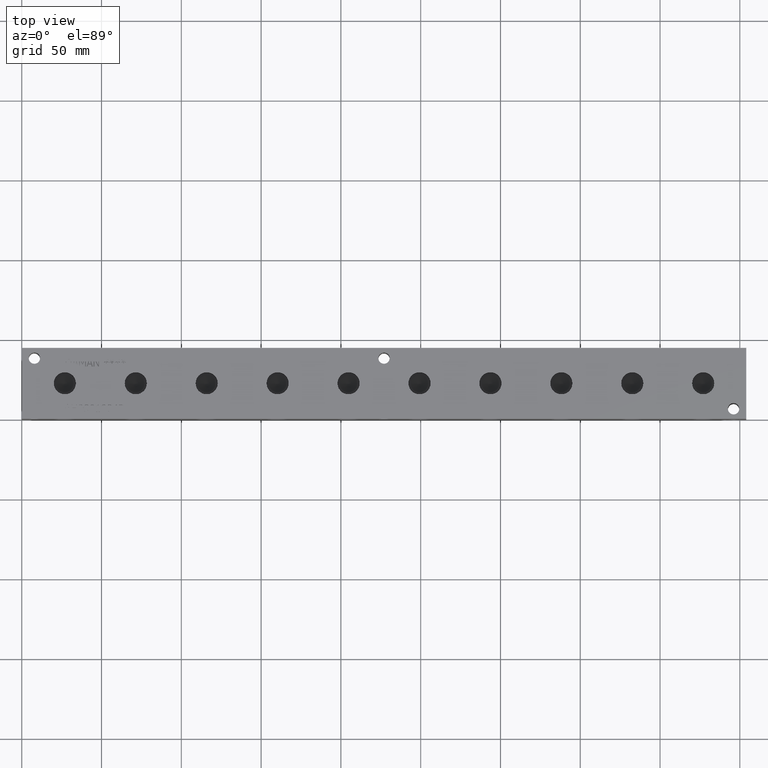
[diagram: clean part render]
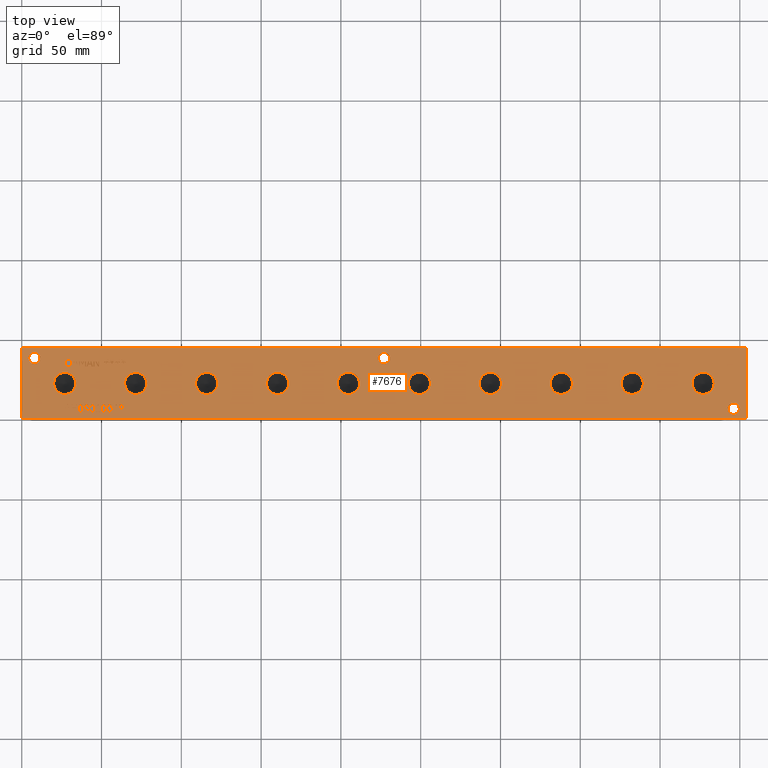
[diagram: same view with one face highlighted and labeled with its STEP entity id]
A machine part, top view. The second image highlights one B-rep face of the part: STEP entity #7676.
In plain terms, the highlighted planar face has unit normal (0, 0, 1).
Its self-contained STEP definition (entity closure, byte-faithful):
#104=CIRCLE('',#8021,3.5687);
#105=CIRCLE('',#8022,3.5687);
#106=CIRCLE('',#8023,3.5687);
#107=CIRCLE('',#8024,3.5687);
#108=CIRCLE('',#8025,3.5687);
#109=CIRCLE('',#8026,3.5687);
#110=CIRCLE('',#8027,6.9342);
#111=CIRCLE('',#8028,6.9342);
#112=CIRCLE('',#8029,6.9342);
#113=CIRCLE('',#8030,6.9342);
#114=CIRCLE('',#8031,6.9342);
#115=CIRCLE('',#8032,6.9342);
#116=CIRCLE('',#8033,6.9342);
#117=CIRCLE('',#8034,6.9342);
#118=CIRCLE('',#8035,6.9342);
#119=CIRCLE('',#8036,6.9342);
#120=CIRCLE('',#8037,6.9342);
#121=CIRCLE('',#8038,6.9342);
#122=CIRCLE('',#8039,6.9342);
#123=CIRCLE('',#8040,6.9342);
#124=CIRCLE('',#8041,6.9342);
#125=CIRCLE('',#8042,6.9342);
#126=CIRCLE('',#8043,6.9342);
#127=CIRCLE('',#8044,6.9342);
#128=CIRCLE('',#8045,6.9342);
#129=CIRCLE('',#8046,6.9342);
#283=FACE_BOUND('',#1169,.T.);
#284=FACE_BOUND('',#1170,.T.);
#285=FACE_BOUND('',#1171,.T.);
#286=FACE_BOUND('',#1172,.T.);
#287=FACE_BOUND('',#1173,.T.);
#288=FACE_BOUND('',#1174,.T.);
#289=FACE_BOUND('',#1175,.T.);
#290=FACE_BOUND('',#1176,.T.);
#291=FACE_BOUND('',#1177,.T.);
#292=FACE_BOUND('',#1178,.T.);
#293=FACE_BOUND('',#1179,.T.);
#294=FACE_BOUND('',#1180,.T.);
#295=FACE_BOUND('',#1181,.T.);
#296=FACE_BOUND('',#1182,.T.);
#297=FACE_BOUND('',#1183,.T.);
#298=FACE_BOUND('',#1184,.T.);
#299=FACE_BOUND('',#1185,.T.);
#300=FACE_BOUND('',#1186,.T.);
#301=FACE_BOUND('',#1187,.T.);
#302=FACE_BOUND('',#1188,.T.);
#303=FACE_BOUND('',#1189,.T.);
#304=FACE_BOUND('',#1190,.T.);
#305=FACE_BOUND('',#1191,.T.);
#306=FACE_BOUND('',#1192,.T.);
#307=FACE_BOUND('',#1193,.T.);
#308=FACE_BOUND('',#1194,.T.);
#309=FACE_BOUND('',#1195,.T.);
#310=FACE_BOUND('',#1196,.T.);
#311=FACE_BOUND('',#1197,.T.);
#312=FACE_BOUND('',#1198,.T.);
#313=FACE_BOUND('',#1199,.T.);
#314=FACE_BOUND('',#1200,.T.);
#435=PLANE('',#8020);
#755=FACE_OUTER_BOUND('',#1168,.T.);
#1168=EDGE_LOOP('',(#5677,#5678,#5679,#5680));
#1169=EDGE_LOOP('',(#5681,#5682,#5683,#5684,#5685,#5686,#5687,#5688,#5689,
#5690,#5691,#5692,#5693,#5694,#5695,#5696,#5697,#5698));
#1170=EDGE_LOOP('',(#5699,#5700,#5701,#5702,#5703,#5704,#5705,#5706,#5707,
#5708,#5709,#5710,#5711,#5712,#5713,#5714,#5715,#5716));
#1171=EDGE_LOOP('',(#5717,#5718,#5719,#5720,#5721,#5722,#5723,#5724,#5725,
#5726,#5727,#5728,#5729));
#1172=EDGE_LOOP('',(#5730,#5731,#5732,#5733,#5734,#5735,#5736,#5737));
#1173=EDGE_LOOP('',(#5738,#5739,#5740,#5741,#5742,#5743,#5744));
#1174=EDGE_LOOP('',(#5745,#5746,#5747,#5748,#5749,#5750,#5751,#5752));
#1175=EDGE_LOOP('',(#5753,#5754,#5755,#5756,#5757,#5758,#5759,#5760,#5761,
#5762));
#1176=EDGE_LOOP('',(#5763,#5764,#5765,#5766,#5767,#5768,#5769,#5770,#5771,
#5772,#5773,#5774,#5775,#5776,#5777,#5778,#5779,#5780));
#1177=EDGE_LOOP('',(#5781,#5782,#5783,#5784,#5785,#5786,#5787,#5788,#5789,
#5790,#5791,#5792,#5793,#5794,#5795,#5796,#5797,#5798));
#1178=EDGE_LOOP('',(#5799,#5800));
#1179=EDGE_LOOP('',(#5801,#5802));
#1180=EDGE_LOOP('',(#5803,#5804));
#1181=EDGE_LOOP('',(#5805,#5806));
#1182=EDGE_LOOP('',(#5807,#5808));
#1183=EDGE_LOOP('',(#5809,#5810));
#1184=EDGE_LOOP('',(#5811,#5812));
#1185=EDGE_LOOP('',(#5813,#5814));
#1186=EDGE_LOOP('',(#5815,#5816));
#1187=EDGE_LOOP('',(#5817,#5818));
#1188=EDGE_LOOP('',(#5819,#5820));
#1189=EDGE_LOOP('',(#5821,#5822));
#1190=EDGE_LOOP('',(#5823,#5824));
#1191=EDGE_LOOP('',(#5825,#5826,#5827,#5828,#5829,#5830,#5831,#5832,#5833,
#5834,#5835));
#1192=EDGE_LOOP('',(#5836,#5837,#5838,#5839));
#1193=EDGE_LOOP('',(#5840,#5841,#5842,#5843,#5844,#5845,#5846,#5847,#5848,
#5849,#5850,#5851,#5852,#5853));
#1194=EDGE_LOOP('',(#5854,#5855,#5856,#5857));
#1195=EDGE_LOOP('',(#5858,#5859,#5860,#5861,#5862,#5863,#5864,#5865,#5866,
#5867,#5868,#5869,#5870,#5871,#5872,#5873,#5874,#5875));
#1196=EDGE_LOOP('',(#5876,#5877,#5878,#5879,#5880,#5881,#5882,#5883,#5884,
#5885,#5886,#5887));
#1197=EDGE_LOOP('',(#5888,#5889,#5890,#5891));
#1198=EDGE_LOOP('',(#5892,#5893,#5894,#5895));
#1199=EDGE_LOOP('',(#5896,#5897,#5898,#5899,#5900,#5901,#5902,#5903,#5904,
#5905,#5906));
#1200=EDGE_LOOP('',(#5907,#5908,#5909,#5910,#5911,#5912,#5913,#5914,#5915));
#1518=LINE('',#10339,#2253);
#1521=LINE('',#10345,#2256);
#1524=LINE('',#10351,#2259);
#1527=LINE('',#10357,#2262);
#1530=LINE('',#10363,#2265);
#1543=LINE('',#10424,#2278);
#1547=LINE('',#10432,#2282);
#1550=LINE('',#10438,#2285);
#1553=LINE('',#10444,#2288);
#1556=LINE('',#10450,#2291);
#1559=LINE('',#10456,#2294);
#1562=LINE('',#10462,#2297);
#1565=LINE('',#10468,#2300);
#1568=LINE('',#10474,#2303);
#1571=LINE('',#10480,#2306);
#1574=LINE('',#10485,#2309);
#1600=LINE('',#10949,#2335);
#1604=LINE('',#10957,#2339);
#1607=LINE('',#10963,#2342);
#1610=LINE('',#10969,#2345);
#1613=LINE('',#10975,#2348);
#1616=LINE('',#10981,#2351);
#1619=LINE('',#10987,#2354);
#1622=LINE('',#10993,#2357);
#1625=LINE('',#10999,#2360);
#1628=LINE('',#11005,#2363);
#1631=LINE('',#11011,#2366);
#1634=LINE('',#11016,#2369);
#1636=LINE('',#11022,#2371);
#1640=LINE('',#11030,#2375);
#1643=LINE('',#11036,#2378);
#1646=LINE('',#11042,#2381);
#1649=LINE('',#11048,#2384);
#1652=LINE('',#11054,#2387);
#1655=LINE('',#11060,#2390);
#1658=LINE('',#11066,#2393);
#1661=LINE('',#11072,#2396);
#1664=LINE('',#11078,#2399);
#1667=LINE('',#11084,#2402);
#1670=LINE('',#11090,#2405);
#1673=LINE('',#11096,#2408);
#1676=LINE('',#11102,#2411);
#1679=LINE('',#11108,#2414);
#1682=LINE('',#11114,#2417);
#1685=LINE('',#11120,#2420);
#1688=LINE('',#11125,#2423);
#1715=LINE('',#11590,#2450);
#1718=LINE('',#11596,#2453);
#1739=LINE('',#11963,#2474);
#1743=LINE('',#11971,#2478);
#1746=LINE('',#11977,#2481);
#1749=LINE('',#11983,#2484);
#1753=LINE('',#12008,#2488);
#1756=LINE('',#12014,#2491);
#1759=LINE('',#12020,#2494);
#1762=LINE('',#12026,#2497);
#1765=LINE('',#12032,#2500);
#1768=LINE('',#12037,#2503);
#1770=LINE('',#12043,#2505);
#1771=LINE('',#12045,#2506);
#1772=LINE('',#12047,#2507);
#1773=LINE('',#12048,#2508);
#1774=LINE('',#12051,#2509);
#1775=LINE('',#12053,#2510);
#1776=LINE('',#12055,#2511);
#1777=LINE('',#12057,#2512);
#1778=LINE('',#12059,#2513);
#1779=LINE('',#12061,#2514);
#1780=LINE('',#12063,#2515);
#1781=LINE('',#12065,#2516);
#1782=LINE('',#12067,#2517);
#1783=LINE('',#12069,#2518);
#1784=LINE('',#12071,#2519);
#1785=LINE('',#12073,#2520);
#1786=LINE('',#12075,#2521);
#1787=LINE('',#12077,#2522);
#1788=LINE('',#12079,#2523);
#1789=LINE('',#12081,#2524);
#1790=LINE('',#12083,#2525);
#1791=LINE('',#12084,#2526);
#1792=LINE('',#12087,#2527);
#1793=LINE('',#12089,#2528);
#1794=LINE('',#12091,#2529);
#1795=LINE('',#12093,#2530);
#1796=LINE('',#12095,#2531);
#1797=LINE('',#12097,#2532);
#1798=LINE('',#12099,#2533);
#1799=LINE('',#12101,#2534);
#1800=LINE('',#12103,#2535);
#1801=LINE('',#12105,#2536);
#1802=LINE('',#12107,#2537);
#1803=LINE('',#12109,#2538);
#1804=LINE('',#12111,#2539);
#1805=LINE('',#12113,#2540);
#1806=LINE('',#12115,#2541);
#1807=LINE('',#12117,#2542);
#1808=LINE('',#12119,#2543);
#1809=LINE('',#12120,#2544);
#1810=LINE('',#12123,#2545);
#1811=LINE('',#12125,#2546);
#1812=LINE('',#12127,#2547);
#1813=LINE('',#12129,#2548);
#1814=LINE('',#12131,#2549);
#1815=LINE('',#12133,#2550);
#1816=LINE('',#12135,#2551);
#1817=LINE('',#12137,#2552);
#1818=LINE('',#12139,#2553);
#1819=LINE('',#12141,#2554);
#1820=LINE('',#12143,#2555);
#1821=LINE('',#12145,#2556);
#1822=LINE('',#12146,#2557);
#1823=LINE('',#12149,#2558);
#1824=LINE('',#12151,#2559);
#1825=LINE('',#12153,#2560);
#1826=LINE('',#12155,#2561);
#1827=LINE('',#12157,#2562);
#1828=LINE('',#12159,#2563);
#1829=LINE('',#12161,#2564);
#1830=LINE('',#12162,#2565);
#1831=LINE('',#12180,#2566);
#1832=LINE('',#12182,#2567);
#1833=LINE('',#12184,#2568);
#1834=LINE('',#12191,#2569);
#1835=LINE('',#12193,#2570);
#1836=LINE('',#12195,#2571);
#1837=LINE('',#12197,#2572);
#1838=LINE('',#12199,#2573);
#1839=LINE('',#12201,#2574);
#1840=LINE('',#12203,#2575);
#1841=LINE('',#12204,#2576);
#1842=LINE('',#12207,#2577);
#1843=LINE('',#12209,#2578);
#1844=LINE('',#12211,#2579);
#1845=LINE('',#12213,#2580);
#1846=LINE('',#12215,#2581);
#1847=LINE('',#12217,#2582);
#1848=LINE('',#12219,#2583);
#1849=LINE('',#12221,#2584);
#1850=LINE('',#12223,#2585);
#1851=LINE('',#12224,#2586);
#1852=LINE('',#12227,#2587);
#1853=LINE('',#12229,#2588);
#1854=LINE('',#12231,#2589);
#1855=LINE('',#12233,#2590);
#1856=LINE('',#12235,#2591);
#1857=LINE('',#12237,#2592);
#1858=LINE('',#12239,#2593);
#1859=LINE('',#12241,#2594);
#1860=LINE('',#12243,#2595);
#1861=LINE('',#12245,#2596);
#1862=LINE('',#12247,#2597);
#1863=LINE('',#12249,#2598);
#1864=LINE('',#12251,#2599);
#1865=LINE('',#12253,#2600);
#1866=LINE('',#12255,#2601);
#1867=LINE('',#12257,#2602);
#1868=LINE('',#12259,#2603);
#1869=LINE('',#12260,#2604);
#1870=LINE('',#12263,#2605);
#1871=LINE('',#12265,#2606);
#1872=LINE('',#12267,#2607);
#1873=LINE('',#12269,#2608);
#1874=LINE('',#12271,#2609);
#1875=LINE('',#12273,#2610);
#1876=LINE('',#12275,#2611);
#1877=LINE('',#12277,#2612);
#1878=LINE('',#12279,#2613);
#1879=LINE('',#12281,#2614);
#1880=LINE('',#12283,#2615);
#1881=LINE('',#12285,#2616);
#1882=LINE('',#12287,#2617);
#1883=LINE('',#12289,#2618);
#1884=LINE('',#12291,#2619);
#1885=LINE('',#12293,#2620);
#1886=LINE('',#12295,#2621);
#1887=LINE('',#12296,#2622);
#2253=VECTOR('',#8478,10.);
#2256=VECTOR('',#8483,10.);
#2259=VECTOR('',#8488,10.);
#2262=VECTOR('',#8493,10.);
#2265=VECTOR('',#8498,10.);
#2278=VECTOR('',#8521,10.);
#2282=VECTOR('',#8527,10.);
#2285=VECTOR('',#8532,10.);
#2288=VECTOR('',#8537,10.);
#2291=VECTOR('',#8542,10.);
#2294=VECTOR('',#8547,10.);
#2297=VECTOR('',#8552,10.);
#2300=VECTOR('',#8557,10.);
#2303=VECTOR('',#8562,10.);
#2306=VECTOR('',#8567,10.);
#2309=VECTOR('',#8572,10.);
#2335=VECTOR('',#8606,10.);
#2339=VECTOR('',#8612,10.);
#2342=VECTOR('',#8617,10.);
#2345=VECTOR('',#8622,10.);
#2348=VECTOR('',#8627,10.);
#2351=VECTOR('',#8632,10.);
#2354=VECTOR('',#8637,10.);
#2357=VECTOR('',#8642,10.);
#2360=VECTOR('',#8647,10.);
#2363=VECTOR('',#8652,10.);
#2366=VECTOR('',#8657,10.);
#2369=VECTOR('',#8662,10.);
#2371=VECTOR('',#8668,10.);
#2375=VECTOR('',#8674,10.);
#2378=VECTOR('',#8679,10.);
#2381=VECTOR('',#8684,10.);
#2384=VECTOR('',#8689,10.);
#2387=VECTOR('',#8694,10.);
#2390=VECTOR('',#8699,10.);
#2393=VECTOR('',#8704,10.);
#2396=VECTOR('',#8709,10.);
#2399=VECTOR('',#8714,10.);
#2402=VECTOR('',#8719,10.);
#2405=VECTOR('',#8724,10.);
#2408=VECTOR('',#8729,10.);
#2411=VECTOR('',#8734,10.);
#2414=VECTOR('',#8739,10.);
#2417=VECTOR('',#8744,10.);
#2420=VECTOR('',#8749,10.);
#2423=VECTOR('',#8754,10.);
#2450=VECTOR('',#8787,10.);
#2453=VECTOR('',#8792,10.);
#2474=VECTOR('',#8819,10.);
#2478=VECTOR('',#8825,10.);
#2481=VECTOR('',#8830,10.);
#2484=VECTOR('',#8835,10.);
#2488=VECTOR('',#8841,10.);
#2491=VECTOR('',#8846,10.);
#2494=VECTOR('',#8851,10.);
#2497=VECTOR('',#8856,10.);
#2500=VECTOR('',#8861,10.);
#2503=VECTOR('',#8866,10.);
#2505=VECTOR('',#8872,10.);
#2506=VECTOR('',#8873,10.);
#2507=VECTOR('',#8874,10.);
#2508=VECTOR('',#8875,10.);
#2509=VECTOR('',#8876,10.);
#2510=VECTOR('',#8877,10.);
#2511=VECTOR('',#8878,10.);
#2512=VECTOR('',#8879,10.);
#2513=VECTOR('',#8880,10.);
#2514=VECTOR('',#8881,10.);
#2515=VECTOR('',#8882,10.);
#2516=VECTOR('',#8883,10.);
#2517=VECTOR('',#8884,10.);
#2518=VECTOR('',#8885,10.);
#2519=VECTOR('',#8886,10.);
#2520=VECTOR('',#8887,10.);
#2521=VECTOR('',#8888,10.);
#2522=VECTOR('',#8889,10.);
#2523=VECTOR('',#8890,10.);
#2524=VECTOR('',#8891,10.);
#2525=VECTOR('',#8892,10.);
#2526=VECTOR('',#8893,10.);
#2527=VECTOR('',#8894,10.);
#2528=VECTOR('',#8895,10.);
#2529=VECTOR('',#8896,10.);
#2530=VECTOR('',#8897,10.);
#2531=VECTOR('',#8898,10.);
#2532=VECTOR('',#8899,10.);
#2533=VECTOR('',#8900,10.);
#2534=VECTOR('',#8901,10.);
#2535=VECTOR('',#8902,10.);
#2536=VECTOR('',#8903,10.);
#2537=VECTOR('',#8904,10.);
#2538=VECTOR('',#8905,10.);
#2539=VECTOR('',#8906,10.);
#2540=VECTOR('',#8907,10.);
#2541=VECTOR('',#8908,10.);
#2542=VECTOR('',#8909,10.);
#2543=VECTOR('',#8910,10.);
#2544=VECTOR('',#8911,10.);
#2545=VECTOR('',#8912,10.);
#2546=VECTOR('',#8913,10.);
#2547=VECTOR('',#8914,10.);
#2548=VECTOR('',#8915,10.);
#2549=VECTOR('',#8916,10.);
#2550=VECTOR('',#8917,10.);
#2551=VECTOR('',#8918,10.);
#2552=VECTOR('',#8919,10.);
#2553=VECTOR('',#8920,10.);
#2554=VECTOR('',#8921,10.);
#2555=VECTOR('',#8922,10.);
#2556=VECTOR('',#8923,10.);
#2557=VECTOR('',#8924,10.);
#2558=VECTOR('',#8925,10.);
#2559=VECTOR('',#8926,10.);
#2560=VECTOR('',#8927,10.);
#2561=VECTOR('',#8928,10.);
#2562=VECTOR('',#8929,10.);
#2563=VECTOR('',#8930,10.);
#2564=VECTOR('',#8931,10.);
#2565=VECTOR('',#8932,10.);
#2566=VECTOR('',#8933,10.);
#2567=VECTOR('',#8934,10.);
#2568=VECTOR('',#8935,10.);
#2569=VECTOR('',#8936,10.);
#2570=VECTOR('',#8937,10.);
#2571=VECTOR('',#8938,10.);
#2572=VECTOR('',#8939,10.);
#2573=VECTOR('',#8940,10.);
#2574=VECTOR('',#8941,10.);
#2575=VECTOR('',#8942,10.);
#2576=VECTOR('',#8943,10.);
#2577=VECTOR('',#8944,10.);
#2578=VECTOR('',#8945,10.);
#2579=VECTOR('',#8946,10.);
#2580=VECTOR('',#8947,10.);
#2581=VECTOR('',#8948,10.);
#2582=VECTOR('',#8949,10.);
#2583=VECTOR('',#8950,10.);
#2584=VECTOR('',#8951,10.);
#2585=VECTOR('',#8952,10.);
#2586=VECTOR('',#8953,10.);
#2587=VECTOR('',#8954,10.);
#2588=VECTOR('',#8955,10.);
#2589=VECTOR('',#8956,10.);
#2590=VECTOR('',#8957,10.);
#2591=VECTOR('',#8958,10.);
#2592=VECTOR('',#8959,10.);
#2593=VECTOR('',#8960,10.);
#2594=VECTOR('',#8961,10.);
#2595=VECTOR('',#8962,10.);
#2596=VECTOR('',#8963,10.);
#2597=VECTOR('',#8964,10.);
#2598=VECTOR('',#8965,10.);
#2599=VECTOR('',#8966,10.);
#2600=VECTOR('',#8967,10.);
#2601=VECTOR('',#8968,10.);
#2602=VECTOR('',#8969,10.);
#2603=VECTOR('',#8970,10.);
#2604=VECTOR('',#8971,10.);
#2605=VECTOR('',#8972,10.);
#2606=VECTOR('',#8973,10.);
#2607=VECTOR('',#8974,10.);
#2608=VECTOR('',#8975,10.);
#2609=VECTOR('',#8976,10.);
#2610=VECTOR('',#8977,10.);
#2611=VECTOR('',#8978,10.);
#2612=VECTOR('',#8979,10.);
#2613=VECTOR('',#8980,10.);
#2614=VECTOR('',#8981,10.);
#2615=VECTOR('',#8982,10.);
#2616=VECTOR('',#8983,10.);
#2617=VECTOR('',#8984,10.);
#2618=VECTOR('',#8985,10.);
#2619=VECTOR('',#8986,10.);
#2620=VECTOR('',#8987,10.);
#2621=VECTOR('',#8988,10.);
#2622=VECTOR('',#8989,10.);
#2980=B_SPLINE_CURVE_WITH_KNOTS('',2,(#10306,#10307,#10308,#10309),
 .UNSPECIFIED.,.F.,.F.,(3,1,3),(0.,1.,2.),.UNSPECIFIED.);
#2982=B_SPLINE_CURVE_WITH_KNOTS('',2,(#10327,#10328,#10329,#10330),
 .UNSPECIFIED.,.F.,.F.,(3,1,3),(0.,1.,2.),.UNSPECIFIED.);
#2984=B_SPLINE_CURVE_WITH_KNOTS('',2,(#10376,#10377,#10378,#10379),
 .UNSPECIFIED.,.F.,.F.,(3,1,3),(0.,1.,2.),.UNSPECIFIED.);
#2986=B_SPLINE_CURVE_WITH_KNOTS('',2,(#10394,#10395,#10396,#10397),
 .UNSPECIFIED.,.F.,.F.,(3,1,3),(0.,1.,2.),.UNSPECIFIED.);
#3004=B_SPLINE_CURVE_WITH_KNOTS('',2,(#10650,#10651,#10652,#10653),
 .UNSPECIFIED.,.F.,.F.,(3,1,3),(0.,1.,2.),.UNSPECIFIED.);
#3006=B_SPLINE_CURVE_WITH_KNOTS('',2,(#10671,#10672,#10673,#10674),
 .UNSPECIFIED.,.F.,.F.,(3,1,3),(0.,1.,2.),.UNSPECIFIED.);
#3008=B_SPLINE_CURVE_WITH_KNOTS('',2,(#10690,#10691,#10692,#10693),
 .UNSPECIFIED.,.F.,.F.,(3,1,3),(0.,1.,2.),.UNSPECIFIED.);
#3010=B_SPLINE_CURVE_WITH_KNOTS('',2,(#10708,#10709,#10710,#10711),
 .UNSPECIFIED.,.F.,.F.,(3,1,3),(0.,1.,2.),.UNSPECIFIED.);
#3028=B_SPLINE_CURVE_WITH_KNOTS('',2,(#10879,#10880,#10881,#10882),
 .UNSPECIFIED.,.F.,.F.,(3,1,3),(0.,1.,2.),.UNSPECIFIED.);
#3030=B_SPLINE_CURVE_WITH_KNOTS('',2,(#10900,#10901,#10902,#10903),
 .UNSPECIFIED.,.F.,.F.,(3,1,3),(0.,1.,2.),.UNSPECIFIED.);
#3032=B_SPLINE_CURVE_WITH_KNOTS('',2,(#10919,#10920,#10921,#10922),
 .UNSPECIFIED.,.F.,.F.,(3,1,3),(0.,1.,2.),.UNSPECIFIED.);
#3034=B_SPLINE_CURVE_WITH_KNOTS('',2,(#10937,#10938,#10939,#10940),
 .UNSPECIFIED.,.F.,.F.,(3,1,3),(0.,1.,2.),.UNSPECIFIED.);
#3052=B_SPLINE_CURVE_WITH_KNOTS('',2,(#11290,#11291,#11292,#11293),
 .UNSPECIFIED.,.F.,.F.,(3,1,3),(0.,1.,2.),.UNSPECIFIED.);
#3054=B_SPLINE_CURVE_WITH_KNOTS('',2,(#11311,#11312,#11313,#11314),
 .UNSPECIFIED.,.F.,.F.,(3,1,3),(0.,1.,2.),.UNSPECIFIED.);
#3056=B_SPLINE_CURVE_WITH_KNOTS('',2,(#11330,#11331,#11332,#11333),
 .UNSPECIFIED.,.F.,.F.,(3,1,3),(0.,1.,2.),.UNSPECIFIED.);
#3058=B_SPLINE_CURVE_WITH_KNOTS('',2,(#11348,#11349,#11350,#11351),
 .UNSPECIFIED.,.F.,.F.,(3,1,3),(0.,1.,2.),.UNSPECIFIED.);
#3074=B_SPLINE_CURVE_WITH_KNOTS('',2,(#11500,#11501,#11502,#11503),
 .UNSPECIFIED.,.F.,.F.,(3,1,3),(0.,1.,2.),.UNSPECIFIED.);
#3076=B_SPLINE_CURVE_WITH_KNOTS('',2,(#11521,#11522,#11523,#11524),
 .UNSPECIFIED.,.F.,.F.,(3,1,3),(0.,1.,2.),.UNSPECIFIED.);
#3078=B_SPLINE_CURVE_WITH_KNOTS('',2,(#11540,#11541,#11542,#11543),
 .UNSPECIFIED.,.F.,.F.,(3,1,3),(0.,1.,2.),.UNSPECIFIED.);
#3080=B_SPLINE_CURVE_WITH_KNOTS('',2,(#11559,#11560,#11561,#11562),
 .UNSPECIFIED.,.F.,.F.,(3,1,3),(0.,1.,2.),.UNSPECIFIED.);
#3082=B_SPLINE_CURVE_WITH_KNOTS('',2,(#11578,#11579,#11580,#11581),
 .UNSPECIFIED.,.F.,.F.,(3,1,3),(0.,1.,2.),.UNSPECIFIED.);
#3084=B_SPLINE_CURVE_WITH_KNOTS('',2,(#11609,#11610,#11611,#11612),
 .UNSPECIFIED.,.F.,.F.,(3,1,3),(0.,1.,2.),.UNSPECIFIED.);
#3086=B_SPLINE_CURVE_WITH_KNOTS('',2,(#11628,#11629,#11630,#11631),
 .UNSPECIFIED.,.F.,.F.,(3,1,3),(0.,1.,2.),.UNSPECIFIED.);
#3088=B_SPLINE_CURVE_WITH_KNOTS('',2,(#11647,#11648,#11649,#11650),
 .UNSPECIFIED.,.F.,.F.,(3,1,3),(0.,1.,2.),.UNSPECIFIED.);
#3090=B_SPLINE_CURVE_WITH_KNOTS('',2,(#11666,#11667,#11668,#11669),
 .UNSPECIFIED.,.F.,.F.,(3,1,3),(0.,1.,2.),.UNSPECIFIED.);
#3092=B_SPLINE_CURVE_WITH_KNOTS('',2,(#11685,#11686,#11687,#11688),
 .UNSPECIFIED.,.F.,.F.,(3,1,3),(0.,1.,2.),.UNSPECIFIED.);
#3094=B_SPLINE_CURVE_WITH_KNOTS('',2,(#11704,#11705,#11706,#11707),
 .UNSPECIFIED.,.F.,.F.,(3,1,3),(0.,1.,2.),.UNSPECIFIED.);
#3096=B_SPLINE_CURVE_WITH_KNOTS('',2,(#11722,#11723,#11724,#11725),
 .UNSPECIFIED.,.F.,.F.,(3,1,3),(0.,1.,2.),.UNSPECIFIED.);
#3114=B_SPLINE_CURVE_WITH_KNOTS('',2,(#11893,#11894,#11895,#11896),
 .UNSPECIFIED.,.F.,.F.,(3,1,3),(0.,1.,2.),.UNSPECIFIED.);
#3116=B_SPLINE_CURVE_WITH_KNOTS('',2,(#11914,#11915,#11916,#11917),
 .UNSPECIFIED.,.F.,.F.,(3,1,3),(0.,1.,2.),.UNSPECIFIED.);
#3118=B_SPLINE_CURVE_WITH_KNOTS('',2,(#11933,#11934,#11935,#11936),
 .UNSPECIFIED.,.F.,.F.,(3,1,3),(0.,1.,2.),.UNSPECIFIED.);
#3120=B_SPLINE_CURVE_WITH_KNOTS('',2,(#11951,#11952,#11953,#11954),
 .UNSPECIFIED.,.F.,.F.,(3,1,3),(0.,1.,2.),.UNSPECIFIED.);
#3122=B_SPLINE_CURVE_WITH_KNOTS('',2,(#11996,#11997,#11998,#11999),
 .UNSPECIFIED.,.F.,.F.,(3,1,3),(0.,1.,2.),.UNSPECIFIED.);
#3124=B_SPLINE_CURVE_WITH_KNOTS('',2,(#12165,#12166,#12167,#12168),
 .UNSPECIFIED.,.F.,.F.,(3,1,3),(0.,1.,2.),.UNSPECIFIED.);
#3125=B_SPLINE_CURVE_WITH_KNOTS('',2,(#12170,#12171,#12172,#12173),
 .UNSPECIFIED.,.F.,.F.,(3,1,3),(0.,1.,2.),.UNSPECIFIED.);
#3126=B_SPLINE_CURVE_WITH_KNOTS('',2,(#12175,#12176,#12177,#12178),
 .UNSPECIFIED.,.F.,.F.,(3,1,3),(0.,1.,2.),.UNSPECIFIED.);
#3127=B_SPLINE_CURVE_WITH_KNOTS('',2,(#12185,#12186,#12187,#12188),
 .UNSPECIFIED.,.F.,.F.,(3,1,3),(0.,1.,2.),.UNSPECIFIED.);
#3154=VERTEX_POINT('',#10304);
#3155=VERTEX_POINT('',#10305);
#3158=VERTEX_POINT('',#10326);
#3160=VERTEX_POINT('',#10338);
#3162=VERTEX_POINT('',#10344);
#3164=VERTEX_POINT('',#10350);
#3166=VERTEX_POINT('',#10356);
#3168=VERTEX_POINT('',#10362);
#3170=VERTEX_POINT('',#10375);
#3178=VERTEX_POINT('',#10422);
#3179=VERTEX_POINT('',#10423);
#3182=VERTEX_POINT('',#10431);
#3184=VERTEX_POINT('',#10437);
#3186=VERTEX_POINT('',#10443);
#3188=VERTEX_POINT('',#10449);
#3190=VERTEX_POINT('',#10455);
#3192=VERTEX_POINT('',#10461);
#3194=VERTEX_POINT('',#10467);
#3196=VERTEX_POINT('',#10473);
#3198=VERTEX_POINT('',#10479);
#3216=VERTEX_POINT('',#10648);
#3217=VERTEX_POINT('',#10649);
#3220=VERTEX_POINT('',#10670);
#3222=VERTEX_POINT('',#10689);
#3240=VERTEX_POINT('',#10877);
#3241=VERTEX_POINT('',#10878);
#3244=VERTEX_POINT('',#10899);
#3246=VERTEX_POINT('',#10918);
#3248=VERTEX_POINT('',#10947);
#3249=VERTEX_POINT('',#10948);
#3252=VERTEX_POINT('',#10956);
#3254=VERTEX_POINT('',#10962);
#3256=VERTEX_POINT('',#10968);
#3258=VERTEX_POINT('',#10974);
#3260=VERTEX_POINT('',#10980);
#3262=VERTEX_POINT('',#10986);
#3264=VERTEX_POINT('',#10992);
#3266=VERTEX_POINT('',#10998);
#3268=VERTEX_POINT('',#11004);
#3270=VERTEX_POINT('',#11010);
#3272=VERTEX_POINT('',#11020);
#3273=VERTEX_POINT('',#11021);
#3276=VERTEX_POINT('',#11029);
#3278=VERTEX_POINT('',#11035);
#3280=VERTEX_POINT('',#11041);
#3282=VERTEX_POINT('',#11047);
#3284=VERTEX_POINT('',#11053);
#3286=VERTEX_POINT('',#11059);
#3288=VERTEX_POINT('',#11065);
#3290=VERTEX_POINT('',#11071);
#3292=VERTEX_POINT('',#11077);
#3294=VERTEX_POINT('',#11083);
#3296=VERTEX_POINT('',#11089);
#3298=VERTEX_POINT('',#11095);
#3300=VERTEX_POINT('',#11101);
#3302=VERTEX_POINT('',#11107);
#3304=VERTEX_POINT('',#11113);
#3306=VERTEX_POINT('',#11119);
#3324=VERTEX_POINT('',#11288);
#3325=VERTEX_POINT('',#11289);
#3328=VERTEX_POINT('',#11310);
#3330=VERTEX_POINT('',#11329);
#3346=VERTEX_POINT('',#11498);
#3347=VERTEX_POINT('',#11499);
#3350=VERTEX_POINT('',#11520);
#3352=VERTEX_POINT('',#11539);
#3354=VERTEX_POINT('',#11558);
#3356=VERTEX_POINT('',#11577);
#3358=VERTEX_POINT('',#11589);
#3360=VERTEX_POINT('',#11595);
#3362=VERTEX_POINT('',#11608);
#3364=VERTEX_POINT('',#11627);
#3366=VERTEX_POINT('',#11646);
#3368=VERTEX_POINT('',#11665);
#3370=VERTEX_POINT('',#11684);
#3372=VERTEX_POINT('',#11703);
#3390=VERTEX_POINT('',#11891);
#3391=VERTEX_POINT('',#11892);
#3394=VERTEX_POINT('',#11913);
#3396=VERTEX_POINT('',#11932);
#3398=VERTEX_POINT('',#11961);
#3399=VERTEX_POINT('',#11962);
#3402=VERTEX_POINT('',#11970);
#3404=VERTEX_POINT('',#11976);
#3406=VERTEX_POINT('',#11982);
#3408=VERTEX_POINT('',#11995);
#3410=VERTEX_POINT('',#12007);
#3412=VERTEX_POINT('',#12013);
#3414=VERTEX_POINT('',#12019);
#3416=VERTEX_POINT('',#12025);
#3418=VERTEX_POINT('',#12031);
#3420=VERTEX_POINT('',#12041);
#3421=VERTEX_POINT('',#12042);
#3422=VERTEX_POINT('',#12044);
#3423=VERTEX_POINT('',#12046);
#3424=VERTEX_POINT('',#12049);
#3425=VERTEX_POINT('',#12050);
#3426=VERTEX_POINT('',#12052);
#3427=VERTEX_POINT('',#12054);
#3428=VERTEX_POINT('',#12056);
#3429=VERTEX_POINT('',#12058);
#3430=VERTEX_POINT('',#12060);
#3431=VERTEX_POINT('',#12062);
#3432=VERTEX_POINT('',#12064);
#3433=VERTEX_POINT('',#12066);
#3434=VERTEX_POINT('',#12068);
#3435=VERTEX_POINT('',#12070);
#3436=VERTEX_POINT('',#12072);
#3437=VERTEX_POINT('',#12074);
#3438=VERTEX_POINT('',#12076);
#3439=VERTEX_POINT('',#12078);
#3440=VERTEX_POINT('',#12080);
#3441=VERTEX_POINT('',#12082);
#3442=VERTEX_POINT('',#12085);
#3443=VERTEX_POINT('',#12086);
#3444=VERTEX_POINT('',#12088);
#3445=VERTEX_POINT('',#12090);
#3446=VERTEX_POINT('',#12092);
#3447=VERTEX_POINT('',#12094);
#3448=VERTEX_POINT('',#12096);
#3449=VERTEX_POINT('',#12098);
#3450=VERTEX_POINT('',#12100);
#3451=VERTEX_POINT('',#12102);
#3452=VERTEX_POINT('',#12104);
#3453=VERTEX_POINT('',#12106);
#3454=VERTEX_POINT('',#12108);
#3455=VERTEX_POINT('',#12110);
#3456=VERTEX_POINT('',#12112);
#3457=VERTEX_POINT('',#12114);
#3458=VERTEX_POINT('',#12116);
#3459=VERTEX_POINT('',#12118);
#3460=VERTEX_POINT('',#12121);
#3461=VERTEX_POINT('',#12122);
#3462=VERTEX_POINT('',#12124);
#3463=VERTEX_POINT('',#12126);
#3464=VERTEX_POINT('',#12128);
#3465=VERTEX_POINT('',#12130);
#3466=VERTEX_POINT('',#12132);
#3467=VERTEX_POINT('',#12134);
#3468=VERTEX_POINT('',#12136);
#3469=VERTEX_POINT('',#12138);
#3470=VERTEX_POINT('',#12140);
#3471=VERTEX_POINT('',#12142);
#3472=VERTEX_POINT('',#12144);
#3473=VERTEX_POINT('',#12147);
#3474=VERTEX_POINT('',#12148);
#3475=VERTEX_POINT('',#12150);
#3476=VERTEX_POINT('',#12152);
#3477=VERTEX_POINT('',#12154);
#3478=VERTEX_POINT('',#12156);
#3479=VERTEX_POINT('',#12158);
#3480=VERTEX_POINT('',#12160);
#3481=VERTEX_POINT('',#12163);
#3482=VERTEX_POINT('',#12164);
#3483=VERTEX_POINT('',#12169);
#3484=VERTEX_POINT('',#12174);
#3485=VERTEX_POINT('',#12179);
#3486=VERTEX_POINT('',#12181);
#3487=VERTEX_POINT('',#12183);
#3488=VERTEX_POINT('',#12189);
#3489=VERTEX_POINT('',#12190);
#3490=VERTEX_POINT('',#12192);
#3491=VERTEX_POINT('',#12194);
#3492=VERTEX_POINT('',#12196);
#3493=VERTEX_POINT('',#12198);
#3494=VERTEX_POINT('',#12200);
#3495=VERTEX_POINT('',#12202);
#3496=VERTEX_POINT('',#12205);
#3497=VERTEX_POINT('',#12206);
#3498=VERTEX_POINT('',#12208);
#3499=VERTEX_POINT('',#12210);
#3500=VERTEX_POINT('',#12212);
#3501=VERTEX_POINT('',#12214);
#3502=VERTEX_POINT('',#12216);
#3503=VERTEX_POINT('',#12218);
#3504=VERTEX_POINT('',#12220);
#3505=VERTEX_POINT('',#12222);
#3506=VERTEX_POINT('',#12225);
#3507=VERTEX_POINT('',#12226);
#3508=VERTEX_POINT('',#12228);
#3509=VERTEX_POINT('',#12230);
#3510=VERTEX_POINT('',#12232);
#3511=VERTEX_POINT('',#12234);
#3512=VERTEX_POINT('',#12236);
#3513=VERTEX_POINT('',#12238);
#3514=VERTEX_POINT('',#12240);
#3515=VERTEX_POINT('',#12242);
#3516=VERTEX_POINT('',#12244);
#3517=VERTEX_POINT('',#12246);
#3518=VERTEX_POINT('',#12248);
#3519=VERTEX_POINT('',#12250);
#3520=VERTEX_POINT('',#12252);
#3521=VERTEX_POINT('',#12254);
#3522=VERTEX_POINT('',#12256);
#3523=VERTEX_POINT('',#12258);
#3524=VERTEX_POINT('',#12261);
#3525=VERTEX_POINT('',#12262);
#3526=VERTEX_POINT('',#12264);
#3527=VERTEX_POINT('',#12266);
#3528=VERTEX_POINT('',#12268);
#3529=VERTEX_POINT('',#12270);
#3530=VERTEX_POINT('',#12272);
#3531=VERTEX_POINT('',#12274);
#3532=VERTEX_POINT('',#12276);
#3533=VERTEX_POINT('',#12278);
#3534=VERTEX_POINT('',#12280);
#3535=VERTEX_POINT('',#12282);
#3536=VERTEX_POINT('',#12284);
#3537=VERTEX_POINT('',#12286);
#3538=VERTEX_POINT('',#12288);
#3539=VERTEX_POINT('',#12290);
#3540=VERTEX_POINT('',#12292);
#3541=VERTEX_POINT('',#12294);
#3542=VERTEX_POINT('',#12297);
#3543=VERTEX_POINT('',#12298);
#3544=VERTEX_POINT('',#12301);
#3545=VERTEX_POINT('',#12302);
#3546=VERTEX_POINT('',#12305);
#3547=VERTEX_POINT('',#12306);
#3548=VERTEX_POINT('',#12309);
#3549=VERTEX_POINT('',#12310);
#3550=VERTEX_POINT('',#12313);
#3551=VERTEX_POINT('',#12314);
#3552=VERTEX_POINT('',#12317);
#3553=VERTEX_POINT('',#12318);
#3554=VERTEX_POINT('',#12321);
#3555=VERTEX_POINT('',#12322);
#3556=VERTEX_POINT('',#12325);
#3557=VERTEX_POINT('',#12326);
#3558=VERTEX_POINT('',#12329);
#3559=VERTEX_POINT('',#12330);
#3560=VERTEX_POINT('',#12333);
#3561=VERTEX_POINT('',#12334);
#3562=VERTEX_POINT('',#12337);
#3563=VERTEX_POINT('',#12338);
#3564=VERTEX_POINT('',#12341);
#3565=VERTEX_POINT('',#12342);
#3566=VERTEX_POINT('',#12345);
#3567=VERTEX_POINT('',#12346);
#3911=EDGE_CURVE('',#3154,#3155,#2980,.T.);
#3915=EDGE_CURVE('',#3158,#3154,#2982,.T.);
#3918=EDGE_CURVE('',#3160,#3158,#1518,.T.);
#3921=EDGE_CURVE('',#3162,#3160,#1521,.T.);
#3924=EDGE_CURVE('',#3164,#3162,#1524,.T.);
#3927=EDGE_CURVE('',#3166,#3164,#1527,.T.);
#3930=EDGE_CURVE('',#3168,#3166,#1530,.T.);
#3933=EDGE_CURVE('',#3170,#3168,#2984,.T.);
#3936=EDGE_CURVE('',#3155,#3170,#2986,.T.);
#3947=EDGE_CURVE('',#3178,#3179,#1543,.T.);
#3951=EDGE_CURVE('',#3182,#3178,#1547,.T.);
#3954=EDGE_CURVE('',#3184,#3182,#1550,.T.);
#3957=EDGE_CURVE('',#3186,#3184,#1553,.T.);
#3960=EDGE_CURVE('',#3188,#3186,#1556,.T.);
#3963=EDGE_CURVE('',#3190,#3188,#1559,.T.);
#3966=EDGE_CURVE('',#3192,#3190,#1562,.T.);
#3969=EDGE_CURVE('',#3194,#3192,#1565,.T.);
#3972=EDGE_CURVE('',#3196,#3194,#1568,.T.);
#3975=EDGE_CURVE('',#3198,#3196,#1571,.T.);
#3978=EDGE_CURVE('',#3179,#3198,#1574,.T.);
#4004=EDGE_CURVE('',#3216,#3217,#3004,.T.);
#4008=EDGE_CURVE('',#3220,#3216,#3006,.T.);
#4011=EDGE_CURVE('',#3222,#3220,#3008,.T.);
#4014=EDGE_CURVE('',#3217,#3222,#3010,.T.);
#4040=EDGE_CURVE('',#3240,#3241,#3028,.T.);
#4044=EDGE_CURVE('',#3244,#3240,#3030,.T.);
#4047=EDGE_CURVE('',#3246,#3244,#3032,.T.);
#4050=EDGE_CURVE('',#3241,#3246,#3034,.T.);
#4052=EDGE_CURVE('',#3248,#3249,#1600,.T.);
#4056=EDGE_CURVE('',#3252,#3248,#1604,.T.);
#4059=EDGE_CURVE('',#3254,#3252,#1607,.T.);
#4062=EDGE_CURVE('',#3256,#3254,#1610,.T.);
#4065=EDGE_CURVE('',#3258,#3256,#1613,.T.);
#4068=EDGE_CURVE('',#3260,#3258,#1616,.T.);
#4071=EDGE_CURVE('',#3262,#3260,#1619,.T.);
#4074=EDGE_CURVE('',#3264,#3262,#1622,.T.);
#4077=EDGE_CURVE('',#3266,#3264,#1625,.T.);
#4080=EDGE_CURVE('',#3268,#3266,#1628,.T.);
#4083=EDGE_CURVE('',#3270,#3268,#1631,.T.);
#4086=EDGE_CURVE('',#3249,#3270,#1634,.T.);
#4088=EDGE_CURVE('',#3272,#3273,#1636,.T.);
#4092=EDGE_CURVE('',#3276,#3272,#1640,.T.);
#4095=EDGE_CURVE('',#3278,#3276,#1643,.T.);
#4098=EDGE_CURVE('',#3280,#3278,#1646,.T.);
#4101=EDGE_CURVE('',#3282,#3280,#1649,.T.);
#4104=EDGE_CURVE('',#3284,#3282,#1652,.T.);
#4107=EDGE_CURVE('',#3286,#3284,#1655,.T.);
#4110=EDGE_CURVE('',#3288,#3286,#1658,.T.);
#4113=EDGE_CURVE('',#3290,#3288,#1661,.T.);
#4116=EDGE_CURVE('',#3292,#3290,#1664,.T.);
#4119=EDGE_CURVE('',#3294,#3292,#1667,.T.);
#4122=EDGE_CURVE('',#3296,#3294,#1670,.T.);
#4125=EDGE_CURVE('',#3298,#3296,#1673,.T.);
#4128=EDGE_CURVE('',#3300,#3298,#1676,.T.);
#4131=EDGE_CURVE('',#3302,#3300,#1679,.T.);
#4134=EDGE_CURVE('',#3304,#3302,#1682,.T.);
#4137=EDGE_CURVE('',#3306,#3304,#1685,.T.);
#4140=EDGE_CURVE('',#3273,#3306,#1688,.T.);
#4166=EDGE_CURVE('',#3324,#3325,#3052,.T.);
#4170=EDGE_CURVE('',#3328,#3324,#3054,.T.);
#4173=EDGE_CURVE('',#3330,#3328,#3056,.T.);
#4176=EDGE_CURVE('',#3325,#3330,#3058,.T.);
#4199=EDGE_CURVE('',#3346,#3347,#3074,.T.);
#4203=EDGE_CURVE('',#3350,#3346,#3076,.T.);
#4206=EDGE_CURVE('',#3352,#3350,#3078,.T.);
#4209=EDGE_CURVE('',#3354,#3352,#3080,.T.);
#4212=EDGE_CURVE('',#3356,#3354,#3082,.T.);
#4215=EDGE_CURVE('',#3358,#3356,#1715,.T.);
#4218=EDGE_CURVE('',#3360,#3358,#1718,.T.);
#4221=EDGE_CURVE('',#3362,#3360,#3084,.T.);
#4224=EDGE_CURVE('',#3364,#3362,#3086,.T.);
#4227=EDGE_CURVE('',#3366,#3364,#3088,.T.);
#4230=EDGE_CURVE('',#3368,#3366,#3090,.T.);
#4233=EDGE_CURVE('',#3370,#3368,#3092,.T.);
#4236=EDGE_CURVE('',#3372,#3370,#3094,.T.);
#4239=EDGE_CURVE('',#3347,#3372,#3096,.T.);
#4265=EDGE_CURVE('',#3390,#3391,#3114,.T.);
#4269=EDGE_CURVE('',#3394,#3390,#3116,.T.);
#4272=EDGE_CURVE('',#3396,#3394,#3118,.T.);
#4275=EDGE_CURVE('',#3391,#3396,#3120,.T.);
#4277=EDGE_CURVE('',#3398,#3399,#1739,.T.);
#4281=EDGE_CURVE('',#3402,#3398,#1743,.T.);
#4284=EDGE_CURVE('',#3404,#3402,#1746,.T.);
#4287=EDGE_CURVE('',#3406,#3404,#1749,.T.);
#4290=EDGE_CURVE('',#3408,#3406,#3122,.T.);
#4293=EDGE_CURVE('',#3410,#3408,#1753,.T.);
#4296=EDGE_CURVE('',#3412,#3410,#1756,.T.);
#4299=EDGE_CURVE('',#3414,#3412,#1759,.T.);
#4302=EDGE_CURVE('',#3416,#3414,#1762,.T.);
#4305=EDGE_CURVE('',#3418,#3416,#1765,.T.);
#4308=EDGE_CURVE('',#3399,#3418,#1768,.T.);
#4310=EDGE_CURVE('',#3420,#3421,#1770,.T.);
#4311=EDGE_CURVE('',#3421,#3422,#1771,.T.);
#4312=EDGE_CURVE('',#3422,#3423,#1772,.T.);
#4313=EDGE_CURVE('',#3423,#3420,#1773,.T.);
#4314=EDGE_CURVE('',#3424,#3425,#1774,.T.);
#4315=EDGE_CURVE('',#3425,#3426,#1775,.T.);
#4316=EDGE_CURVE('',#3426,#3427,#1776,.T.);
#4317=EDGE_CURVE('',#3427,#3428,#1777,.T.);
#4318=EDGE_CURVE('',#3428,#3429,#1778,.T.);
#4319=EDGE_CURVE('',#3429,#3430,#1779,.T.);
#4320=EDGE_CURVE('',#3430,#3431,#1780,.T.);
#4321=EDGE_CURVE('',#3431,#3432,#1781,.T.);
#4322=EDGE_CURVE('',#3432,#3433,#1782,.T.);
#4323=EDGE_CURVE('',#3433,#3434,#1783,.T.);
#4324=EDGE_CURVE('',#3434,#3435,#1784,.T.);
#4325=EDGE_CURVE('',#3435,#3436,#1785,.T.);
#4326=EDGE_CURVE('',#3436,#3437,#1786,.T.);
#4327=EDGE_CURVE('',#3437,#3438,#1787,.T.);
#4328=EDGE_CURVE('',#3438,#3439,#1788,.T.);
#4329=EDGE_CURVE('',#3439,#3440,#1789,.T.);
#4330=EDGE_CURVE('',#3440,#3441,#1790,.T.);
#4331=EDGE_CURVE('',#3441,#3424,#1791,.T.);
#4332=EDGE_CURVE('',#3442,#3443,#1792,.T.);
#4333=EDGE_CURVE('',#3443,#3444,#1793,.T.);
#4334=EDGE_CURVE('',#3444,#3445,#1794,.T.);
#4335=EDGE_CURVE('',#3445,#3446,#1795,.T.);
#4336=EDGE_CURVE('',#3446,#3447,#1796,.T.);
#4337=EDGE_CURVE('',#3447,#3448,#1797,.T.);
#4338=EDGE_CURVE('',#3448,#3449,#1798,.T.);
#4339=EDGE_CURVE('',#3449,#3450,#1799,.T.);
#4340=EDGE_CURVE('',#3450,#3451,#1800,.T.);
#4341=EDGE_CURVE('',#3451,#3452,#1801,.T.);
#4342=EDGE_CURVE('',#3452,#3453,#1802,.T.);
#4343=EDGE_CURVE('',#3453,#3454,#1803,.T.);
#4344=EDGE_CURVE('',#3454,#3455,#1804,.T.);
#4345=EDGE_CURVE('',#3455,#3456,#1805,.T.);
#4346=EDGE_CURVE('',#3456,#3457,#1806,.T.);
#4347=EDGE_CURVE('',#3457,#3458,#1807,.T.);
#4348=EDGE_CURVE('',#3458,#3459,#1808,.T.);
#4349=EDGE_CURVE('',#3459,#3442,#1809,.T.);
#4350=EDGE_CURVE('',#3460,#3461,#1810,.T.);
#4351=EDGE_CURVE('',#3461,#3462,#1811,.T.);
#4352=EDGE_CURVE('',#3462,#3463,#1812,.T.);
#4353=EDGE_CURVE('',#3463,#3464,#1813,.T.);
#4354=EDGE_CURVE('',#3464,#3465,#1814,.T.);
#4355=EDGE_CURVE('',#3465,#3466,#1815,.T.);
#4356=EDGE_CURVE('',#3466,#3467,#1816,.T.);
#4357=EDGE_CURVE('',#3467,#3468,#1817,.T.);
#4358=EDGE_CURVE('',#3468,#3469,#1818,.T.);
#4359=EDGE_CURVE('',#3469,#3470,#1819,.T.);
#4360=EDGE_CURVE('',#3470,#3471,#1820,.T.);
#4361=EDGE_CURVE('',#3471,#3472,#1821,.T.);
#4362=EDGE_CURVE('',#3472,#3460,#1822,.T.);
#4363=EDGE_CURVE('',#3473,#3474,#1823,.T.);
#4364=EDGE_CURVE('',#3474,#3475,#1824,.T.);
#4365=EDGE_CURVE('',#3475,#3476,#1825,.T.);
#4366=EDGE_CURVE('',#3476,#3477,#1826,.T.);
#4367=EDGE_CURVE('',#3477,#3478,#1827,.T.);
#4368=EDGE_CURVE('',#3478,#3479,#1828,.T.);
#4369=EDGE_CURVE('',#3479,#3480,#1829,.T.);
#4370=EDGE_CURVE('',#3480,#3473,#1830,.T.);
#4371=EDGE_CURVE('',#3481,#3482,#3124,.T.);
#4372=EDGE_CURVE('',#3482,#3483,#3125,.T.);
#4373=EDGE_CURVE('',#3483,#3484,#3126,.T.);
#4374=EDGE_CURVE('',#3484,#3485,#1831,.T.);
#4375=EDGE_CURVE('',#3485,#3486,#1832,.T.);
#4376=EDGE_CURVE('',#3486,#3487,#1833,.T.);
#4377=EDGE_CURVE('',#3487,#3481,#3127,.T.);
#4378=EDGE_CURVE('',#3488,#3489,#1834,.T.);
#4379=EDGE_CURVE('',#3489,#3490,#1835,.T.);
#4380=EDGE_CURVE('',#3490,#3491,#1836,.T.);
#4381=EDGE_CURVE('',#3491,#3492,#1837,.T.);
#4382=EDGE_CURVE('',#3492,#3493,#1838,.T.);
#4383=EDGE_CURVE('',#3493,#3494,#1839,.T.);
#4384=EDGE_CURVE('',#3494,#3495,#1840,.T.);
#4385=EDGE_CURVE('',#3495,#3488,#1841,.T.);
#4386=EDGE_CURVE('',#3496,#3497,#1842,.T.);
#4387=EDGE_CURVE('',#3497,#3498,#1843,.T.);
#4388=EDGE_CURVE('',#3498,#3499,#1844,.T.);
#4389=EDGE_CURVE('',#3499,#3500,#1845,.T.);
#4390=EDGE_CURVE('',#3500,#3501,#1846,.T.);
#4391=EDGE_CURVE('',#3501,#3502,#1847,.T.);
#4392=EDGE_CURVE('',#3502,#3503,#1848,.T.);
#4393=EDGE_CURVE('',#3503,#3504,#1849,.T.);
#4394=EDGE_CURVE('',#3504,#3505,#1850,.T.);
#4395=EDGE_CURVE('',#3505,#3496,#1851,.T.);
#4396=EDGE_CURVE('',#3506,#3507,#1852,.T.);
#4397=EDGE_CURVE('',#3507,#3508,#1853,.T.);
#4398=EDGE_CURVE('',#3508,#3509,#1854,.T.);
#4399=EDGE_CURVE('',#3509,#3510,#1855,.T.);
#4400=EDGE_CURVE('',#3510,#3511,#1856,.T.);
#4401=EDGE_CURVE('',#3511,#3512,#1857,.T.);
#4402=EDGE_CURVE('',#3512,#3513,#1858,.T.);
#4403=EDGE_CURVE('',#3513,#3514,#1859,.T.);
#4404=EDGE_CURVE('',#3514,#3515,#1860,.T.);
#4405=EDGE_CURVE('',#3515,#3516,#1861,.T.);
#4406=EDGE_CURVE('',#3516,#3517,#1862,.T.);
#4407=EDGE_CURVE('',#3517,#3518,#1863,.T.);
#4408=EDGE_CURVE('',#3518,#3519,#1864,.T.);
#4409=EDGE_CURVE('',#3519,#3520,#1865,.T.);
#4410=EDGE_CURVE('',#3520,#3521,#1866,.T.);
#4411=EDGE_CURVE('',#3521,#3522,#1867,.T.);
#4412=EDGE_CURVE('',#3522,#3523,#1868,.T.);
#4413=EDGE_CURVE('',#3523,#3506,#1869,.T.);
#4414=EDGE_CURVE('',#3524,#3525,#1870,.T.);
#4415=EDGE_CURVE('',#3525,#3526,#1871,.T.);
#4416=EDGE_CURVE('',#3526,#3527,#1872,.T.);
#4417=EDGE_CURVE('',#3527,#3528,#1873,.T.);
#4418=EDGE_CURVE('',#3528,#3529,#1874,.T.);
#4419=EDGE_CURVE('',#3529,#3530,#1875,.T.);
#4420=EDGE_CURVE('',#3530,#3531,#1876,.T.);
#4421=EDGE_CURVE('',#3531,#3532,#1877,.T.);
#4422=EDGE_CURVE('',#3532,#3533,#1878,.T.);
#4423=EDGE_CURVE('',#3533,#3534,#1879,.T.);
#4424=EDGE_CURVE('',#3534,#3535,#1880,.T.);
#4425=EDGE_CURVE('',#3535,#3536,#1881,.T.);
#4426=EDGE_CURVE('',#3536,#3537,#1882,.T.);
#4427=EDGE_CURVE('',#3537,#3538,#1883,.T.);
#4428=EDGE_CURVE('',#3538,#3539,#1884,.T.);
#4429=EDGE_CURVE('',#3539,#3540,#1885,.T.);
#4430=EDGE_CURVE('',#3540,#3541,#1886,.T.);
#4431=EDGE_CURVE('',#3541,#3524,#1887,.T.);
#4432=EDGE_CURVE('',#3542,#3543,#104,.T.);
#4433=EDGE_CURVE('',#3543,#3542,#105,.T.);
#4434=EDGE_CURVE('',#3544,#3545,#106,.T.);
#4435=EDGE_CURVE('',#3545,#3544,#107,.T.);
#4436=EDGE_CURVE('',#3546,#3547,#108,.T.);
#4437=EDGE_CURVE('',#3547,#3546,#109,.T.);
#4438=EDGE_CURVE('',#3548,#3549,#110,.T.);
#4439=EDGE_CURVE('',#3549,#3548,#111,.T.);
#4440=EDGE_CURVE('',#3550,#3551,#112,.T.);
#4441=EDGE_CURVE('',#3551,#3550,#113,.T.);
#4442=EDGE_CURVE('',#3552,#3553,#114,.T.);
#4443=EDGE_CURVE('',#3553,#3552,#115,.T.);
#4444=EDGE_CURVE('',#3554,#3555,#116,.T.);
#4445=EDGE_CURVE('',#3555,#3554,#117,.T.);
#4446=EDGE_CURVE('',#3556,#3557,#118,.T.);
#4447=EDGE_CURVE('',#3557,#3556,#119,.T.);
#4448=EDGE_CURVE('',#3558,#3559,#120,.T.);
#4449=EDGE_CURVE('',#3559,#3558,#121,.T.);
#4450=EDGE_CURVE('',#3560,#3561,#122,.T.);
#4451=EDGE_CURVE('',#3561,#3560,#123,.T.);
#4452=EDGE_CURVE('',#3562,#3563,#124,.T.);
#4453=EDGE_CURVE('',#3563,#3562,#125,.T.);
#4454=EDGE_CURVE('',#3564,#3565,#126,.T.);
#4455=EDGE_CURVE('',#3565,#3564,#127,.T.);
#4456=EDGE_CURVE('',#3566,#3567,#128,.T.);
#4457=EDGE_CURVE('',#3567,#3566,#129,.T.);
#5677=ORIENTED_EDGE('',*,*,#4310,.T.);
#5678=ORIENTED_EDGE('',*,*,#4311,.T.);
#5679=ORIENTED_EDGE('',*,*,#4312,.T.);
#5680=ORIENTED_EDGE('',*,*,#4313,.T.);
#5681=ORIENTED_EDGE('',*,*,#4314,.T.);
#5682=ORIENTED_EDGE('',*,*,#4315,.T.);
#5683=ORIENTED_EDGE('',*,*,#4316,.T.);
#5684=ORIENTED_EDGE('',*,*,#4317,.T.);
#5685=ORIENTED_EDGE('',*,*,#4318,.T.);
#5686=ORIENTED_EDGE('',*,*,#4319,.T.);
#5687=ORIENTED_EDGE('',*,*,#4320,.T.);
#5688=ORIENTED_EDGE('',*,*,#4321,.T.);
#5689=ORIENTED_EDGE('',*,*,#4322,.T.);
#5690=ORIENTED_EDGE('',*,*,#4323,.T.);
#5691=ORIENTED_EDGE('',*,*,#4324,.T.);
#5692=ORIENTED_EDGE('',*,*,#4325,.T.);
#5693=ORIENTED_EDGE('',*,*,#4326,.T.);
#5694=ORIENTED_EDGE('',*,*,#4327,.T.);
#5695=ORIENTED_EDGE('',*,*,#4328,.T.);
#5696=ORIENTED_EDGE('',*,*,#4329,.T.);
#5697=ORIENTED_EDGE('',*,*,#4330,.T.);
#5698=ORIENTED_EDGE('',*,*,#4331,.T.);
#5699=ORIENTED_EDGE('',*,*,#4332,.T.);
#5700=ORIENTED_EDGE('',*,*,#4333,.T.);
#5701=ORIENTED_EDGE('',*,*,#4334,.T.);
#5702=ORIENTED_EDGE('',*,*,#4335,.T.);
#5703=ORIENTED_EDGE('',*,*,#4336,.T.);
#5704=ORIENTED_EDGE('',*,*,#4337,.T.);
#5705=ORIENTED_EDGE('',*,*,#4338,.T.);
#5706=ORIENTED_EDGE('',*,*,#4339,.T.);
#5707=ORIENTED_EDGE('',*,*,#4340,.T.);
#5708=ORIENTED_EDGE('',*,*,#4341,.T.);
#5709=ORIENTED_EDGE('',*,*,#4342,.T.);
#5710=ORIENTED_EDGE('',*,*,#4343,.T.);
#5711=ORIENTED_EDGE('',*,*,#4344,.T.);
#5712=ORIENTED_EDGE('',*,*,#4345,.T.);
#5713=ORIENTED_EDGE('',*,*,#4346,.T.);
#5714=ORIENTED_EDGE('',*,*,#4347,.T.);
#5715=ORIENTED_EDGE('',*,*,#4348,.T.);
#5716=ORIENTED_EDGE('',*,*,#4349,.T.);
#5717=ORIENTED_EDGE('',*,*,#4350,.T.);
#5718=ORIENTED_EDGE('',*,*,#4351,.T.);
#5719=ORIENTED_EDGE('',*,*,#4352,.T.);
#5720=ORIENTED_EDGE('',*,*,#4353,.T.);
#5721=ORIENTED_EDGE('',*,*,#4354,.T.);
#5722=ORIENTED_EDGE('',*,*,#4355,.T.);
#5723=ORIENTED_EDGE('',*,*,#4356,.T.);
#5724=ORIENTED_EDGE('',*,*,#4357,.T.);
#5725=ORIENTED_EDGE('',*,*,#4358,.T.);
#5726=ORIENTED_EDGE('',*,*,#4359,.T.);
#5727=ORIENTED_EDGE('',*,*,#4360,.T.);
#5728=ORIENTED_EDGE('',*,*,#4361,.T.);
#5729=ORIENTED_EDGE('',*,*,#4362,.T.);
#5730=ORIENTED_EDGE('',*,*,#4363,.T.);
#5731=ORIENTED_EDGE('',*,*,#4364,.T.);
#5732=ORIENTED_EDGE('',*,*,#4365,.T.);
#5733=ORIENTED_EDGE('',*,*,#4366,.T.);
#5734=ORIENTED_EDGE('',*,*,#4367,.T.);
#5735=ORIENTED_EDGE('',*,*,#4368,.T.);
#5736=ORIENTED_EDGE('',*,*,#4369,.T.);
#5737=ORIENTED_EDGE('',*,*,#4370,.T.);
#5738=ORIENTED_EDGE('',*,*,#4371,.T.);
#5739=ORIENTED_EDGE('',*,*,#4372,.T.);
#5740=ORIENTED_EDGE('',*,*,#4373,.T.);
#5741=ORIENTED_EDGE('',*,*,#4374,.T.);
#5742=ORIENTED_EDGE('',*,*,#4375,.T.);
#5743=ORIENTED_EDGE('',*,*,#4376,.T.);
#5744=ORIENTED_EDGE('',*,*,#4377,.T.);
#5745=ORIENTED_EDGE('',*,*,#4378,.T.);
#5746=ORIENTED_EDGE('',*,*,#4379,.T.);
#5747=ORIENTED_EDGE('',*,*,#4380,.T.);
#5748=ORIENTED_EDGE('',*,*,#4381,.T.);
#5749=ORIENTED_EDGE('',*,*,#4382,.T.);
#5750=ORIENTED_EDGE('',*,*,#4383,.T.);
#5751=ORIENTED_EDGE('',*,*,#4384,.T.);
#5752=ORIENTED_EDGE('',*,*,#4385,.T.);
#5753=ORIENTED_EDGE('',*,*,#4386,.T.);
#5754=ORIENTED_EDGE('',*,*,#4387,.T.);
#5755=ORIENTED_EDGE('',*,*,#4388,.T.);
#5756=ORIENTED_EDGE('',*,*,#4389,.T.);
#5757=ORIENTED_EDGE('',*,*,#4390,.T.);
#5758=ORIENTED_EDGE('',*,*,#4391,.T.);
#5759=ORIENTED_EDGE('',*,*,#4392,.T.);
#5760=ORIENTED_EDGE('',*,*,#4393,.T.);
#5761=ORIENTED_EDGE('',*,*,#4394,.T.);
#5762=ORIENTED_EDGE('',*,*,#4395,.T.);
#5763=ORIENTED_EDGE('',*,*,#4396,.T.);
#5764=ORIENTED_EDGE('',*,*,#4397,.T.);
#5765=ORIENTED_EDGE('',*,*,#4398,.T.);
#5766=ORIENTED_EDGE('',*,*,#4399,.T.);
#5767=ORIENTED_EDGE('',*,*,#4400,.T.);
#5768=ORIENTED_EDGE('',*,*,#4401,.T.);
#5769=ORIENTED_EDGE('',*,*,#4402,.T.);
#5770=ORIENTED_EDGE('',*,*,#4403,.T.);
#5771=ORIENTED_EDGE('',*,*,#4404,.T.);
#5772=ORIENTED_EDGE('',*,*,#4405,.T.);
#5773=ORIENTED_EDGE('',*,*,#4406,.T.);
#5774=ORIENTED_EDGE('',*,*,#4407,.T.);
#5775=ORIENTED_EDGE('',*,*,#4408,.T.);
#5776=ORIENTED_EDGE('',*,*,#4409,.T.);
#5777=ORIENTED_EDGE('',*,*,#4410,.T.);
#5778=ORIENTED_EDGE('',*,*,#4411,.T.);
#5779=ORIENTED_EDGE('',*,*,#4412,.T.);
#5780=ORIENTED_EDGE('',*,*,#4413,.T.);
#5781=ORIENTED_EDGE('',*,*,#4414,.T.);
#5782=ORIENTED_EDGE('',*,*,#4415,.T.);
#5783=ORIENTED_EDGE('',*,*,#4416,.T.);
#5784=ORIENTED_EDGE('',*,*,#4417,.T.);
#5785=ORIENTED_EDGE('',*,*,#4418,.T.);
#5786=ORIENTED_EDGE('',*,*,#4419,.T.);
#5787=ORIENTED_EDGE('',*,*,#4420,.T.);
#5788=ORIENTED_EDGE('',*,*,#4421,.T.);
#5789=ORIENTED_EDGE('',*,*,#4422,.T.);
#5790=ORIENTED_EDGE('',*,*,#4423,.T.);
#5791=ORIENTED_EDGE('',*,*,#4424,.T.);
#5792=ORIENTED_EDGE('',*,*,#4425,.T.);
#5793=ORIENTED_EDGE('',*,*,#4426,.T.);
#5794=ORIENTED_EDGE('',*,*,#4427,.T.);
#5795=ORIENTED_EDGE('',*,*,#4428,.T.);
#5796=ORIENTED_EDGE('',*,*,#4429,.T.);
#5797=ORIENTED_EDGE('',*,*,#4430,.T.);
#5798=ORIENTED_EDGE('',*,*,#4431,.T.);
#5799=ORIENTED_EDGE('',*,*,#4432,.T.);
#5800=ORIENTED_EDGE('',*,*,#4433,.T.);
#5801=ORIENTED_EDGE('',*,*,#4434,.T.);
#5802=ORIENTED_EDGE('',*,*,#4435,.T.);
#5803=ORIENTED_EDGE('',*,*,#4436,.T.);
#5804=ORIENTED_EDGE('',*,*,#4437,.T.);
#5805=ORIENTED_EDGE('',*,*,#4438,.T.);
#5806=ORIENTED_EDGE('',*,*,#4439,.T.);
#5807=ORIENTED_EDGE('',*,*,#4440,.T.);
#5808=ORIENTED_EDGE('',*,*,#4441,.T.);
#5809=ORIENTED_EDGE('',*,*,#4442,.T.);
#5810=ORIENTED_EDGE('',*,*,#4443,.T.);
#5811=ORIENTED_EDGE('',*,*,#4444,.T.);
#5812=ORIENTED_EDGE('',*,*,#4445,.T.);
#5813=ORIENTED_EDGE('',*,*,#4446,.T.);
#5814=ORIENTED_EDGE('',*,*,#4447,.T.);
#5815=ORIENTED_EDGE('',*,*,#4448,.T.);
#5816=ORIENTED_EDGE('',*,*,#4449,.T.);
#5817=ORIENTED_EDGE('',*,*,#4450,.T.);
#5818=ORIENTED_EDGE('',*,*,#4451,.T.);
#5819=ORIENTED_EDGE('',*,*,#4452,.T.);
#5820=ORIENTED_EDGE('',*,*,#4453,.T.);
#5821=ORIENTED_EDGE('',*,*,#4454,.T.);
#5822=ORIENTED_EDGE('',*,*,#4455,.T.);
#5823=ORIENTED_EDGE('',*,*,#4456,.T.);
#5824=ORIENTED_EDGE('',*,*,#4457,.T.);
#5825=ORIENTED_EDGE('',*,*,#4277,.T.);
#5826=ORIENTED_EDGE('',*,*,#4308,.T.);
#5827=ORIENTED_EDGE('',*,*,#4305,.T.);
#5828=ORIENTED_EDGE('',*,*,#4302,.T.);
#5829=ORIENTED_EDGE('',*,*,#4299,.T.);
#5830=ORIENTED_EDGE('',*,*,#4296,.T.);
#5831=ORIENTED_EDGE('',*,*,#4293,.T.);
#5832=ORIENTED_EDGE('',*,*,#4290,.T.);
#5833=ORIENTED_EDGE('',*,*,#4287,.T.);
#5834=ORIENTED_EDGE('',*,*,#4284,.T.);
#5835=ORIENTED_EDGE('',*,*,#4281,.T.);
#5836=ORIENTED_EDGE('',*,*,#4265,.T.);
#5837=ORIENTED_EDGE('',*,*,#4275,.T.);
#5838=ORIENTED_EDGE('',*,*,#4272,.T.);
#5839=ORIENTED_EDGE('',*,*,#4269,.T.);
#5840=ORIENTED_EDGE('',*,*,#4199,.T.);
#5841=ORIENTED_EDGE('',*,*,#4239,.T.);
#5842=ORIENTED_EDGE('',*,*,#4236,.T.);
#5843=ORIENTED_EDGE('',*,*,#4233,.T.);
#5844=ORIENTED_EDGE('',*,*,#4230,.T.);
#5845=ORIENTED_EDGE('',*,*,#4227,.T.);
#5846=ORIENTED_EDGE('',*,*,#4224,.T.);
#5847=ORIENTED_EDGE('',*,*,#4221,.T.);
#5848=ORIENTED_EDGE('',*,*,#4218,.T.);
#5849=ORIENTED_EDGE('',*,*,#4215,.T.);
#5850=ORIENTED_EDGE('',*,*,#4212,.T.);
#5851=ORIENTED_EDGE('',*,*,#4209,.T.);
#5852=ORIENTED_EDGE('',*,*,#4206,.T.);
#5853=ORIENTED_EDGE('',*,*,#4203,.T.);
#5854=ORIENTED_EDGE('',*,*,#4166,.T.);
#5855=ORIENTED_EDGE('',*,*,#4176,.T.);
#5856=ORIENTED_EDGE('',*,*,#4173,.T.);
#5857=ORIENTED_EDGE('',*,*,#4170,.T.);
#5858=ORIENTED_EDGE('',*,*,#4088,.T.);
#5859=ORIENTED_EDGE('',*,*,#4140,.T.);
#5860=ORIENTED_EDGE('',*,*,#4137,.T.);
#5861=ORIENTED_EDGE('',*,*,#4134,.T.);
#5862=ORIENTED_EDGE('',*,*,#4131,.T.);
#5863=ORIENTED_EDGE('',*,*,#4128,.T.);
#5864=ORIENTED_EDGE('',*,*,#4125,.T.);
#5865=ORIENTED_EDGE('',*,*,#4122,.T.);
#5866=ORIENTED_EDGE('',*,*,#4119,.T.);
#5867=ORIENTED_EDGE('',*,*,#4116,.T.);
#5868=ORIENTED_EDGE('',*,*,#4113,.T.);
#5869=ORIENTED_EDGE('',*,*,#4110,.T.);
#5870=ORIENTED_EDGE('',*,*,#4107,.T.);
#5871=ORIENTED_EDGE('',*,*,#4104,.T.);
#5872=ORIENTED_EDGE('',*,*,#4101,.T.);
#5873=ORIENTED_EDGE('',*,*,#4098,.T.);
#5874=ORIENTED_EDGE('',*,*,#4095,.T.);
#5875=ORIENTED_EDGE('',*,*,#4092,.T.);
#5876=ORIENTED_EDGE('',*,*,#4052,.T.);
#5877=ORIENTED_EDGE('',*,*,#4086,.T.);
#5878=ORIENTED_EDGE('',*,*,#4083,.T.);
#5879=ORIENTED_EDGE('',*,*,#4080,.T.);
#5880=ORIENTED_EDGE('',*,*,#4077,.T.);
#5881=ORIENTED_EDGE('',*,*,#4074,.T.);
#5882=ORIENTED_EDGE('',*,*,#4071,.T.);
#5883=ORIENTED_EDGE('',*,*,#4068,.T.);
#5884=ORIENTED_EDGE('',*,*,#4065,.T.);
#5885=ORIENTED_EDGE('',*,*,#4062,.T.);
#5886=ORIENTED_EDGE('',*,*,#4059,.T.);
#5887=ORIENTED_EDGE('',*,*,#4056,.T.);
#5888=ORIENTED_EDGE('',*,*,#4040,.T.);
#5889=ORIENTED_EDGE('',*,*,#4050,.T.);
#5890=ORIENTED_EDGE('',*,*,#4047,.T.);
#5891=ORIENTED_EDGE('',*,*,#4044,.T.);
#5892=ORIENTED_EDGE('',*,*,#4004,.T.);
#5893=ORIENTED_EDGE('',*,*,#4014,.T.);
#5894=ORIENTED_EDGE('',*,*,#4011,.T.);
#5895=ORIENTED_EDGE('',*,*,#4008,.T.);
#5896=ORIENTED_EDGE('',*,*,#3947,.T.);
#5897=ORIENTED_EDGE('',*,*,#3978,.T.);
#5898=ORIENTED_EDGE('',*,*,#3975,.T.);
#5899=ORIENTED_EDGE('',*,*,#3972,.T.);
#5900=ORIENTED_EDGE('',*,*,#3969,.T.);
#5901=ORIENTED_EDGE('',*,*,#3966,.T.);
#5902=ORIENTED_EDGE('',*,*,#3963,.T.);
#5903=ORIENTED_EDGE('',*,*,#3960,.T.);
#5904=ORIENTED_EDGE('',*,*,#3957,.T.);
#5905=ORIENTED_EDGE('',*,*,#3954,.T.);
#5906=ORIENTED_EDGE('',*,*,#3951,.T.);
#5907=ORIENTED_EDGE('',*,*,#3911,.T.);
#5908=ORIENTED_EDGE('',*,*,#3936,.T.);
#5909=ORIENTED_EDGE('',*,*,#3933,.T.);
#5910=ORIENTED_EDGE('',*,*,#3930,.T.);
#5911=ORIENTED_EDGE('',*,*,#3927,.T.);
#5912=ORIENTED_EDGE('',*,*,#3924,.T.);
#5913=ORIENTED_EDGE('',*,*,#3921,.T.);
#5914=ORIENTED_EDGE('',*,*,#3918,.T.);
#5915=ORIENTED_EDGE('',*,*,#3915,.T.);
#7676=ADVANCED_FACE('',(#755,#283,#284,#285,#286,#287,#288,#289,#290,#291,
#292,#293,#294,#295,#296,#297,#298,#299,#300,#301,#302,#303,#304,#305,#306,
#307,#308,#309,#310,#311,#312,#313,#314),#435,.T.);
#8020=AXIS2_PLACEMENT_3D('',#12040,#8870,#8871);
#8021=AXIS2_PLACEMENT_3D('',#12299,#8990,#8991);
#8022=AXIS2_PLACEMENT_3D('',#12300,#8992,#8993);
#8023=AXIS2_PLACEMENT_3D('',#12303,#8994,#8995);
#8024=AXIS2_PLACEMENT_3D('',#12304,#8996,#8997);
#8025=AXIS2_PLACEMENT_3D('',#12307,#8998,#8999);
#8026=AXIS2_PLACEMENT_3D('',#12308,#9000,#9001);
#8027=AXIS2_PLACEMENT_3D('',#12311,#9002,#9003);
#8028=AXIS2_PLACEMENT_3D('',#12312,#9004,#9005);
#8029=AXIS2_PLACEMENT_3D('',#12315,#9006,#9007);
#8030=AXIS2_PLACEMENT_3D('',#12316,#9008,#9009);
#8031=AXIS2_PLACEMENT_3D('',#12319,#9010,#9011);
#8032=AXIS2_PLACEMENT_3D('',#12320,#9012,#9013);
#8033=AXIS2_PLACEMENT_3D('',#12323,#9014,#9015);
#8034=AXIS2_PLACEMENT_3D('',#12324,#9016,#9017);
#8035=AXIS2_PLACEMENT_3D('',#12327,#9018,#9019);
#8036=AXIS2_PLACEMENT_3D('',#12328,#9020,#9021);
#8037=AXIS2_PLACEMENT_3D('',#12331,#9022,#9023);
#8038=AXIS2_PLACEMENT_3D('',#12332,#9024,#9025);
#8039=AXIS2_PLACEMENT_3D('',#12335,#9026,#9027);
#8040=AXIS2_PLACEMENT_3D('',#12336,#9028,#9029);
#8041=AXIS2_PLACEMENT_3D('',#12339,#9030,#9031);
#8042=AXIS2_PLACEMENT_3D('',#12340,#9032,#9033);
#8043=AXIS2_PLACEMENT_3D('',#12343,#9034,#9035);
#8044=AXIS2_PLACEMENT_3D('',#12344,#9036,#9037);
#8045=AXIS2_PLACEMENT_3D('',#12347,#9038,#9039);
#8046=AXIS2_PLACEMENT_3D('',#12348,#9040,#9041);
#8478=DIRECTION('',(1.,0.,0.));
#8483=DIRECTION('',(0.,1.,0.));
#8488=DIRECTION('',(-1.,0.,0.));
#8493=DIRECTION('',(0.,-1.,0.));
#8498=DIRECTION('',(-1.,0.,0.));
#8521=DIRECTION('',(0.,-1.,0.));
#8527=DIRECTION('',(1.,0.,0.));
#8532=DIRECTION('',(0.,-1.,0.));
#8537=DIRECTION('',(1.,0.,0.));
#8542=DIRECTION('',(0.655472859888769,0.755218729871842,0.));
#8547=DIRECTION('',(0.,1.,0.));
#8552=DIRECTION('',(-1.,0.,0.));
#8557=DIRECTION('',(0.,1.,0.));
#8562=DIRECTION('',(-1.,0.,0.));
#8567=DIRECTION('',(0.,-1.,0.));
#8572=DIRECTION('',(-1.,0.,0.));
#8606=DIRECTION('',(0.,-1.,0.));
#8612=DIRECTION('',(1.,0.,0.));
#8617=DIRECTION('',(0.,1.,0.));
#8622=DIRECTION('',(1.,0.,0.));
#8627=DIRECTION('',(0.,-1.,0.));
#8632=DIRECTION('',(1.,0.,0.));
#8637=DIRECTION('',(0.,1.,0.));
#8642=DIRECTION('',(-1.,0.,0.));
#8647=DIRECTION('',(0.,-1.,0.));
#8652=DIRECTION('',(-1.,0.,0.));
#8657=DIRECTION('',(0.,1.,0.));
#8662=DIRECTION('',(-1.,0.,0.));
#8668=DIRECTION('',(0.863671970566991,-0.504054289989611,0.));
#8674=DIRECTION('',(-0.86495430708312,-0.501850621857102,0.));
#8679=DIRECTION('',(0.510320389620593,-0.859984360286561,0.));
#8684=DIRECTION('',(0.83393220572654,0.551866900848445,0.));
#8689=DIRECTION('',(-0.0231725839648085,-0.999731479624601,0.));
#8694=DIRECTION('',(1.,0.,0.));
#8699=DIRECTION('',(-0.0198636297743478,0.999802698642181,0.));
#8704=DIRECTION('',(0.83062769207368,-0.556828193575318,0.));
#8709=DIRECTION('',(0.517259170391712,0.855828809193566,0.));
#8714=DIRECTION('',(-0.863671970566991,0.504054289989611,0.));
#8719=DIRECTION('',(0.862387849576917,0.50624815743082,0.));
#8724=DIRECTION('',(-0.517259170391712,0.855828809193566,0.));
#8729=DIRECTION('',(-0.829670163866863,-0.558253902081421,0.));
#8734=DIRECTION('',(0.0165540227281047,0.999862972777529,0.));
#8739=DIRECTION('',(-1.,0.,0.));
#8744=DIRECTION('',(0.0198636297743478,-0.999802698642181,0.));
#8749=DIRECTION('',(-0.832994863913619,0.55328072141864,0.));
#8754=DIRECTION('',(-0.510320389620593,-0.859984360286561,0.));
#8787=DIRECTION('',(1.,0.,0.));
#8792=DIRECTION('',(0.,1.,0.));
#8819=DIRECTION('',(0.,-1.,0.));
#8825=DIRECTION('',(1.,0.,0.));
#8830=DIRECTION('',(0.,-1.,0.));
#8835=DIRECTION('',(1.,0.,0.));
#8841=DIRECTION('',(0.,1.,0.));
#8846=DIRECTION('',(-1.,0.,0.));
#8851=DIRECTION('',(0.,1.,0.));
#8856=DIRECTION('',(1.,0.,0.));
#8861=DIRECTION('',(0.,1.,0.));
#8866=DIRECTION('',(-1.,0.,0.));
#8870=DIRECTION('center_axis',(0.,0.,1.));
#8871=DIRECTION('ref_axis',(1.,0.,0.));
#8872=DIRECTION('',(1.,0.,0.));
#8873=DIRECTION('',(0.,1.,0.));
#8874=DIRECTION('',(-1.,0.,0.));
#8875=DIRECTION('',(0.,-1.,0.));
#8876=DIRECTION('',(0.863671970566992,-0.504054289989609,0.));
#8877=DIRECTION('',(-0.510320389620591,-0.859984360286562,0.));
#8878=DIRECTION('',(-0.83299486391362,0.553280721418639,0.));
#8879=DIRECTION('',(0.0198636297743478,-0.999802698642181,0.));
#8880=DIRECTION('',(-1.,0.,0.));
#8881=DIRECTION('',(0.0165540227281047,0.999862972777529,0.));
#8882=DIRECTION('',(-0.829670163866864,-0.55825390208142,0.));
#8883=DIRECTION('',(-0.51725917039171,0.855828809193567,0.));
#8884=DIRECTION('',(0.862387849576918,0.506248157430818,0.));
#8885=DIRECTION('',(-0.863671970566992,0.504054289989609,0.));
#8886=DIRECTION('',(0.51725917039171,0.855828809193567,0.));
#8887=DIRECTION('',(0.830627692073678,-0.55682819357532,0.));
#8888=DIRECTION('',(-0.0198636297743478,0.999802698642181,0.));
#8889=DIRECTION('',(1.,0.,0.));
#8890=DIRECTION('',(-0.0231725839648085,-0.999731479624601,0.));
#8891=DIRECTION('',(0.833932205726539,0.551866900848447,0.));
#8892=DIRECTION('',(0.510320389620591,-0.859984360286562,0.));
#8893=DIRECTION('',(-0.864954307083121,-0.5018506218571,0.));
#8894=DIRECTION('',(0.863671970566992,-0.504054289989609,0.));
#8895=DIRECTION('',(-0.510320389620591,-0.859984360286562,0.));
#8896=DIRECTION('',(-0.83299486391362,0.553280721418639,0.));
#8897=DIRECTION('',(0.0198636297743478,-0.999802698642181,0.));
#8898=DIRECTION('',(-1.,0.,0.));
#8899=DIRECTION('',(0.0165540227281047,0.999862972777529,0.));
#8900=DIRECTION('',(-0.829670163866864,-0.55825390208142,0.));
#8901=DIRECTION('',(-0.51725917039171,0.855828809193567,0.));
#8902=DIRECTION('',(0.862387849576918,0.506248157430818,0.));
#8903=DIRECTION('',(-0.863671970566992,0.504054289989609,0.));
#8904=DIRECTION('',(0.51725917039171,0.855828809193567,0.));
#8905=DIRECTION('',(0.830627692073678,-0.55682819357532,0.));
#8906=DIRECTION('',(-0.0198636297743478,0.999802698642181,0.));
#8907=DIRECTION('',(1.,0.,0.));
#8908=DIRECTION('',(-0.0231725839648085,-0.999731479624601,0.));
#8909=DIRECTION('',(0.833932205726539,0.551866900848447,0.));
#8910=DIRECTION('',(0.510320389620591,-0.859984360286562,0.));
#8911=DIRECTION('',(-0.864954307083121,-0.5018506218571,0.));
#8912=DIRECTION('',(0.,-1.,0.));
#8913=DIRECTION('',(-1.,0.,0.));
#8914=DIRECTION('',(0.,1.,0.));
#8915=DIRECTION('',(-0.406841728378542,-0.913498663408962,0.));
#8916=DIRECTION('',(-1.,0.,0.));
#8917=DIRECTION('',(-0.403671360964848,0.914904056356068,0.));
#8918=DIRECTION('',(0.,-1.,0.));
#8919=DIRECTION('',(-1.,0.,0.));
#8920=DIRECTION('',(0.,1.,0.));
#8921=DIRECTION('',(1.,0.,0.));
#8922=DIRECTION('',(0.409094040958196,-0.91249222772169,0.));
#8923=DIRECTION('',(0.397944692264712,0.917409408006231,0.));
#8924=DIRECTION('',(1.,0.,0.));
#8925=DIRECTION('',(-1.,0.,0.));
#8926=DIRECTION('',(0.319451166674568,0.947602739606771,0.));
#8927=DIRECTION('',(1.,0.,0.));
#8928=DIRECTION('',(0.319451166674568,-0.947602739606771,0.));
#8929=DIRECTION('',(-1.,0.,0.));
#8930=DIRECTION('',(-0.308774363938382,0.951135317488762,0.));
#8931=DIRECTION('',(-1.,0.,0.));
#8932=DIRECTION('',(-0.308774363938382,-0.951135317488762,0.));
#8933=DIRECTION('',(-1.,0.,0.));
#8934=DIRECTION('',(0.,1.,0.));
#8935=DIRECTION('',(1.,0.,0.));
#8936=DIRECTION('',(-1.,0.,0.));
#8937=DIRECTION('',(0.319451166674567,0.947602739606771,0.));
#8938=DIRECTION('',(1.,0.,0.));
#8939=DIRECTION('',(0.319451166674567,-0.947602739606771,0.));
#8940=DIRECTION('',(-1.,0.,0.));
#8941=DIRECTION('',(-0.308774363938385,0.951135317488761,0.));
#8942=DIRECTION('',(-1.,0.,0.));
#8943=DIRECTION('',(-0.308774363938379,-0.951135317488763,0.));
#8944=DIRECTION('',(0.,-1.,0.));
#8945=DIRECTION('',(-1.,0.,0.));
#8946=DIRECTION('',(-0.456554296231787,0.889695551631173,0.));
#8947=DIRECTION('',(0.,-1.,0.));
#8948=DIRECTION('',(-1.,0.,0.));
#8949=DIRECTION('',(0.,1.,0.));
#8950=DIRECTION('',(1.,0.,0.));
#8951=DIRECTION('',(0.453406386913821,-0.891303903450307,0.));
#8952=DIRECTION('',(0.,1.,0.));
#8953=DIRECTION('',(1.,0.,0.));
#8954=DIRECTION('',(0.863671970566992,-0.504054289989609,0.));
#8955=DIRECTION('',(-0.510320389620607,-0.859984360286553,0.));
#8956=DIRECTION('',(-0.832994863913618,0.553280721418643,0.));
#8957=DIRECTION('',(0.0198636297743478,-0.999802698642181,0.));
#8958=DIRECTION('',(-1.,0.,0.));
#8959=DIRECTION('',(0.0165540227281047,0.999862972777529,0.));
#8960=DIRECTION('',(-0.829670163866864,-0.55825390208142,0.));
#8961=DIRECTION('',(-0.51725917039171,0.855828809193567,0.));
#8962=DIRECTION('',(0.862387849576918,0.506248157430818,0.));
#8963=DIRECTION('',(-0.863671970566992,0.504054289989609,0.));
#8964=DIRECTION('',(0.51725917039171,0.855828809193567,0.));
#8965=DIRECTION('',(0.830627692073678,-0.55682819357532,0.));
#8966=DIRECTION('',(-0.0198636297743478,0.999802698642181,0.));
#8967=DIRECTION('',(1.,0.,0.));
#8968=DIRECTION('',(-0.0231725839648085,-0.999731479624601,0.));
#8969=DIRECTION('',(0.833932205726537,0.55186690084845,0.));
#8970=DIRECTION('',(0.510320389620607,-0.859984360286553,0.));
#8971=DIRECTION('',(-0.864954307083121,-0.5018506218571,0.));
#8972=DIRECTION('',(0.863671970566992,-0.504054289989609,0.));
#8973=DIRECTION('',(-0.510320389620607,-0.859984360286553,0.));
#8974=DIRECTION('',(-0.832994863913618,0.553280721418643,0.));
#8975=DIRECTION('',(0.0198636297743478,-0.999802698642181,0.));
#8976=DIRECTION('',(-1.,0.,0.));
#8977=DIRECTION('',(0.0165540227281047,0.999862972777529,0.));
#8978=DIRECTION('',(-0.829670163866864,-0.55825390208142,0.));
#8979=DIRECTION('',(-0.51725917039171,0.855828809193567,0.));
#8980=DIRECTION('',(0.862387849576918,0.506248157430818,0.));
#8981=DIRECTION('',(-0.863671970566992,0.504054289989609,0.));
#8982=DIRECTION('',(0.51725917039171,0.855828809193567,0.));
#8983=DIRECTION('',(0.830627692073678,-0.55682819357532,0.));
#8984=DIRECTION('',(-0.0198636297743478,0.999802698642181,0.));
#8985=DIRECTION('',(1.,0.,0.));
#8986=DIRECTION('',(-0.0231725839648085,-0.999731479624601,0.));
#8987=DIRECTION('',(0.833932205726537,0.55186690084845,0.));
#8988=DIRECTION('',(0.510320389620607,-0.859984360286553,0.));
#8989=DIRECTION('',(-0.864954307083121,-0.5018506218571,0.));
#8990=DIRECTION('center_axis',(0.,0.,-1.));
#8991=DIRECTION('ref_axis',(1.,0.,0.));
#8992=DIRECTION('center_axis',(0.,0.,-1.));
#8993=DIRECTION('ref_axis',(1.,0.,0.));
#8994=DIRECTION('center_axis',(0.,0.,-1.));
#8995=DIRECTION('ref_axis',(1.,0.,0.));
#8996=DIRECTION('center_axis',(0.,0.,-1.));
#8997=DIRECTION('ref_axis',(1.,0.,0.));
#8998=DIRECTION('center_axis',(0.,0.,-1.));
#8999=DIRECTION('ref_axis',(1.,0.,0.));
#9000=DIRECTION('center_axis',(0.,0.,-1.));
#9001=DIRECTION('ref_axis',(1.,0.,0.));
#9002=DIRECTION('center_axis',(0.,0.,-1.));
#9003=DIRECTION('ref_axis',(1.,0.,0.));
#9004=DIRECTION('center_axis',(0.,0.,-1.));
#9005=DIRECTION('ref_axis',(1.,0.,0.));
#9006=DIRECTION('center_axis',(0.,0.,-1.));
#9007=DIRECTION('ref_axis',(1.,0.,0.));
#9008=DIRECTION('center_axis',(0.,0.,-1.));
#9009=DIRECTION('ref_axis',(1.,0.,0.));
#9010=DIRECTION('center_axis',(0.,0.,-1.));
#9011=DIRECTION('ref_axis',(1.,0.,0.));
#9012=DIRECTION('center_axis',(0.,0.,-1.));
#9013=DIRECTION('ref_axis',(1.,0.,0.));
#9014=DIRECTION('center_axis',(0.,0.,-1.));
#9015=DIRECTION('ref_axis',(1.,0.,0.));
#9016=DIRECTION('center_axis',(0.,0.,-1.));
#9017=DIRECTION('ref_axis',(1.,0.,0.));
#9018=DIRECTION('center_axis',(0.,0.,-1.));
#9019=DIRECTION('ref_axis',(1.,0.,0.));
#9020=DIRECTION('center_axis',(0.,0.,-1.));
#9021=DIRECTION('ref_axis',(1.,0.,0.));
#9022=DIRECTION('center_axis',(0.,0.,-1.));
#9023=DIRECTION('ref_axis',(1.,0.,0.));
#9024=DIRECTION('center_axis',(0.,0.,-1.));
#9025=DIRECTION('ref_axis',(1.,0.,0.));
#9026=DIRECTION('center_axis',(0.,0.,-1.));
#9027=DIRECTION('ref_axis',(1.,0.,0.));
#9028=DIRECTION('center_axis',(0.,0.,-1.));
#9029=DIRECTION('ref_axis',(1.,0.,0.));
#9030=DIRECTION('center_axis',(0.,0.,-1.));
#9031=DIRECTION('ref_axis',(1.,0.,0.));
#9032=DIRECTION('center_axis',(0.,0.,-1.));
#9033=DIRECTION('ref_axis',(1.,0.,0.));
#9034=DIRECTION('center_axis',(0.,0.,-1.));
#9035=DIRECTION('ref_axis',(1.,0.,0.));
#9036=DIRECTION('center_axis',(0.,0.,-1.));
#9037=DIRECTION('ref_axis',(1.,0.,0.));
#9038=DIRECTION('center_axis',(0.,0.,-1.));
#9039=DIRECTION('ref_axis',(1.,0.,0.));
#9040=DIRECTION('center_axis',(0.,0.,-1.));
#9041=DIRECTION('ref_axis',(1.,0.,0.));
#10304=CARTESIAN_POINT('',(63.4054192253991,8.59529621956185,44.45));
#10305=CARTESIAN_POINT('',(63.980315501831,7.44159280767474,44.45));
#10306=CARTESIAN_POINT('Ctrl Pts',(63.4054192253991,8.59529621956185,44.45));
#10307=CARTESIAN_POINT('Ctrl Pts',(63.67526849801,8.41148584546458,44.45));
#10308=CARTESIAN_POINT('Ctrl Pts',(63.980315501831,7.84441128707939,44.45));
#10309=CARTESIAN_POINT('Ctrl Pts',(63.980315501831,7.44159280767474,44.45));
#10326=CARTESIAN_POINT('',(62.1422117608583,8.8964323643595,44.45));
#10327=CARTESIAN_POINT('Ctrl Pts',(62.1422117608583,8.8964323643595,44.45));
#10328=CARTESIAN_POINT('Ctrl Pts',(62.5724062534264,8.8964323643595,44.45));
#10329=CARTESIAN_POINT('Ctrl Pts',(63.1746785430216,8.75564143951904,44.45));
#10330=CARTESIAN_POINT('Ctrl Pts',(63.4054192253991,8.59529621956185,44.45));
#10338=CARTESIAN_POINT('',(60.929845463621,8.8964323643595,44.45));
#10339=CARTESIAN_POINT('',(143.97117273181,8.8964323643595,44.45));
#10344=CARTESIAN_POINT('',(60.929845463621,4.07043232955039,44.45));
#10345=CARTESIAN_POINT('',(60.929845463621,13.1477161647752,44.45));
#10350=CARTESIAN_POINT('',(61.5712263434497,4.07043232955039,44.45));
#10351=CARTESIAN_POINT('',(144.291863171725,4.07043232955039,44.45));
#10356=CARTESIAN_POINT('',(61.5712263434497,5.8694274802896,44.45));
#10357=CARTESIAN_POINT('',(61.5712263434497,14.0472137401448,44.45));
#10362=CARTESIAN_POINT('',(62.1148357476948,5.8694274802896,44.45));
#10363=CARTESIAN_POINT('',(144.563667873847,5.8694274802896,44.45));
#10375=CARTESIAN_POINT('',(63.5579427273096,6.37001743527791,44.45));
#10376=CARTESIAN_POINT('Ctrl Pts',(63.5579427273096,6.37001743527791,44.45));
#10377=CARTESIAN_POINT('Ctrl Pts',(63.3076477498154,6.1236333168071,44.45));
#10378=CARTESIAN_POINT('Ctrl Pts',(62.6310691387765,5.8694274802896,44.45));
#10379=CARTESIAN_POINT('Ctrl Pts',(62.1148357476948,5.8694274802896,44.45));
#10394=CARTESIAN_POINT('Ctrl Pts',(63.980315501831,7.44159280767474,44.45));
#10395=CARTESIAN_POINT('Ctrl Pts',(63.980315501831,7.12872408580705,44.45));
#10396=CARTESIAN_POINT('Ctrl Pts',(63.7573965375002,6.56556038644521,44.45));
#10397=CARTESIAN_POINT('Ctrl Pts',(63.5579427273096,6.37001743527791,44.45));
#10422=CARTESIAN_POINT('',(60.2767320067222,6.24878080555417,44.45));
#10423=CARTESIAN_POINT('',(60.2767320067222,5.72863655544914,44.45));
#10424=CARTESIAN_POINT('',(60.2767320067222,14.2368904027771,44.45));
#10431=CARTESIAN_POINT('',(59.7018357302903,6.24878080555417,44.45));
#10432=CARTESIAN_POINT('',(143.357167865145,6.24878080555418,44.45));
#10437=CARTESIAN_POINT('',(59.7018357302903,8.8964323643595,44.45));
#10438=CARTESIAN_POINT('',(59.7018357302903,15.5607161821797,44.45));
#10443=CARTESIAN_POINT('',(59.1073851587417,8.8964323643595,44.45));
#10444=CARTESIAN_POINT('',(143.059942579371,8.8964323643595,44.45));
#10449=CARTESIAN_POINT('',(56.9485909778546,6.40912602551137,44.45));
#10450=CARTESIAN_POINT('',(97.3967465352823,53.0124356895042,44.45));
#10455=CARTESIAN_POINT('',(56.9485909778546,5.72863655544914,44.45));
#10456=CARTESIAN_POINT('',(56.9485909778546,13.9768182777246,44.45));
#10461=CARTESIAN_POINT('',(59.0800091455783,5.72863655544914,44.45));
#10462=CARTESIAN_POINT('',(143.046254572789,5.72863655544914,44.45));
#10467=CARTESIAN_POINT('',(59.0800091455783,4.07043232955039,44.45));
#10468=CARTESIAN_POINT('',(59.0800091455782,13.1477161647752,44.45));
#10473=CARTESIAN_POINT('',(59.7018357302903,4.07043232955039,44.45));
#10474=CARTESIAN_POINT('',(143.357167865145,4.07043232955039,44.45));
#10479=CARTESIAN_POINT('',(59.7018357302903,5.72863655544914,44.45));
#10480=CARTESIAN_POINT('',(59.7018357302903,13.9768182777246,44.45));
#10485=CARTESIAN_POINT('',(143.644616003361,5.72863655544914,44.45));
#10648=CARTESIAN_POINT('',(55.0127157612983,8.99420383994315,44.45));
#10649=CARTESIAN_POINT('',(56.5535942164967,6.48343234695494,44.45));
#10650=CARTESIAN_POINT('Ctrl Pts',(55.0127157612983,8.99420383994315,44.45));
#10651=CARTESIAN_POINT('Ctrl Pts',(55.8066201430376,8.99420383994315,44.45));
#10652=CARTESIAN_POINT('Ctrl Pts',(56.5535942164967,7.74272895247239,44.45));
#10653=CARTESIAN_POINT('Ctrl Pts',(56.5535942164967,6.48343234695494,44.45));
#10670=CARTESIAN_POINT('',(53.4679264470766,6.4795214879316,44.45));
#10671=CARTESIAN_POINT('Ctrl Pts',(53.4679264470766,6.4795214879316,44.45));
#10672=CARTESIAN_POINT('Ctrl Pts',(53.4679264470766,7.7857484017292,44.45));
#10673=CARTESIAN_POINT('Ctrl Pts',(54.2227222385824,8.99420383994315,44.45));
#10674=CARTESIAN_POINT('Ctrl Pts',(55.0127157612983,8.99420383994315,44.45));
#10689=CARTESIAN_POINT('',(55.0127157612983,3.96874999494339,44.45));
#10690=CARTESIAN_POINT('Ctrl Pts',(55.0127157612983,3.96874999494339,44.45));
#10691=CARTESIAN_POINT('Ctrl Pts',(54.2149005205357,3.96874999494339,44.45));
#10692=CARTESIAN_POINT('Ctrl Pts',(53.4679264470766,5.20849230534411,44.45));
#10693=CARTESIAN_POINT('Ctrl Pts',(53.4679264470766,6.4795214879316,44.45));
#10708=CARTESIAN_POINT('Ctrl Pts',(56.5535942164967,6.48343234695494,44.45));
#10709=CARTESIAN_POINT('Ctrl Pts',(56.5535942164967,5.18502715120403,44.45));
#10710=CARTESIAN_POINT('Ctrl Pts',(55.7987984249909,3.96874999494339,44.45));
#10711=CARTESIAN_POINT('Ctrl Pts',(55.0127157612983,3.96874999494339,44.45));
#10877=CARTESIAN_POINT('',(51.3912603056798,8.99420383994315,44.45));
#10878=CARTESIAN_POINT('',(52.9321387608782,6.48343234695494,44.45));
#10879=CARTESIAN_POINT('Ctrl Pts',(51.3912603056798,8.99420383994315,44.45));
#10880=CARTESIAN_POINT('Ctrl Pts',(52.185164687419,8.99420383994315,44.45));
#10881=CARTESIAN_POINT('Ctrl Pts',(52.9321387608782,7.74272895247239,44.45));
#10882=CARTESIAN_POINT('Ctrl Pts',(52.9321387608782,6.48343234695494,44.45));
#10899=CARTESIAN_POINT('',(49.8464709914581,6.4795214879316,44.45));
#10900=CARTESIAN_POINT('Ctrl Pts',(49.8464709914581,6.4795214879316,44.45));
#10901=CARTESIAN_POINT('Ctrl Pts',(49.8464709914581,7.7857484017292,44.45));
#10902=CARTESIAN_POINT('Ctrl Pts',(50.6012667829639,8.99420383994315,44.45));
#10903=CARTESIAN_POINT('Ctrl Pts',(51.3912603056798,8.99420383994315,44.45));
#10918=CARTESIAN_POINT('',(51.3912603056798,3.96874999494339,44.45));
#10919=CARTESIAN_POINT('Ctrl Pts',(51.3912603056798,3.96874999494339,44.45));
#10920=CARTESIAN_POINT('Ctrl Pts',(50.5934450649172,3.96874999494339,44.45));
#10921=CARTESIAN_POINT('Ctrl Pts',(49.8464709914581,5.20849230534411,44.45));
#10922=CARTESIAN_POINT('Ctrl Pts',(49.8464709914581,6.4795214879316,44.45));
#10937=CARTESIAN_POINT('Ctrl Pts',(52.9321387608782,6.48343234695494,44.45));
#10938=CARTESIAN_POINT('Ctrl Pts',(52.9321387608782,5.18502715120403,44.45));
#10939=CARTESIAN_POINT('Ctrl Pts',(52.1773429693724,3.96874999494339,44.45));
#10940=CARTESIAN_POINT('Ctrl Pts',(51.3912603056798,3.96874999494339,44.45));
#10947=CARTESIAN_POINT('',(34.6019425184549,8.8964323643595,44.45));
#10948=CARTESIAN_POINT('',(34.6019425184549,4.07043232955039,44.45));
#10949=CARTESIAN_POINT('',(34.6019425184549,15.5607161821797,44.45));
#10956=CARTESIAN_POINT('',(33.9605616386261,8.8964323643595,44.45));
#10957=CARTESIAN_POINT('',(130.486530819313,8.8964323643595,44.45));
#10962=CARTESIAN_POINT('',(33.9605616386261,7.00357659705998,44.45));
#10963=CARTESIAN_POINT('',(33.9605616386261,14.61428829853,44.45));
#10968=CARTESIAN_POINT('',(31.7391937133655,7.00357659705998,44.45));
#10969=CARTESIAN_POINT('',(129.375846856683,7.00357659705998,44.45));
#10974=CARTESIAN_POINT('',(31.7391937133655,8.8964323643595,44.45));
#10975=CARTESIAN_POINT('',(31.7391937133655,15.5607161821797,44.45));
#10980=CARTESIAN_POINT('',(31.0978128335368,8.8964323643595,44.45));
#10981=CARTESIAN_POINT('',(129.055156416768,8.8964323643595,44.45));
#10986=CARTESIAN_POINT('',(31.0978128335368,4.07043232955039,44.45));
#10987=CARTESIAN_POINT('',(31.0978128335368,13.1477161647752,44.45));
#10992=CARTESIAN_POINT('',(31.7391937133655,4.07043232955039,44.45));
#10993=CARTESIAN_POINT('',(129.375846856683,4.07043232955039,44.45));
#10998=CARTESIAN_POINT('',(31.7391937133655,6.43259117965144,44.45));
#10999=CARTESIAN_POINT('',(31.7391937133655,14.3287955898257,44.45));
#11004=CARTESIAN_POINT('',(33.9605616386261,6.43259117965144,44.45));
#11005=CARTESIAN_POINT('',(130.486530819313,6.43259117965144,44.45));
#11010=CARTESIAN_POINT('',(33.9605616386261,4.07043232955039,44.45));
#11011=CARTESIAN_POINT('',(33.9605616386261,13.1477161647752,44.45));
#11016=CARTESIAN_POINT('',(130.807221259227,4.07043232955039,44.45));
#11020=CARTESIAN_POINT('',(29.1071855906536,7.61367060470197,44.45));
#11021=CARTESIAN_POINT('',(30.253067284494,6.94491371170978,44.45));
#11022=CARTESIAN_POINT('',(99.7384389577373,-33.6079823842788,44.45));
#11029=CARTESIAN_POINT('',(30.253067284494,8.27851663867081,44.45));
#11030=CARTESIAN_POINT('',(106.882383772748,52.7392122120605,44.45));
#11035=CARTESIAN_POINT('',(30.0418808972333,8.63440480979531,44.45));
#11036=CARTESIAN_POINT('',(52.7078691324301,-29.5619827717403,44.45));
#11041=CARTESIAN_POINT('',(28.9781272428832,7.93045018559301,44.45));
#11042=CARTESIAN_POINT('',(101.128244708742,55.6768514497644,44.45));
#11047=CARTESIAN_POINT('',(29.0055032560466,9.11152961064353,44.45));
#11048=CARTESIAN_POINT('',(29.2105607294642,17.9582948923744,44.45));
#11053=CARTESIAN_POINT('',(28.5987739176186,9.11152961064353,44.45));
#11054=CARTESIAN_POINT('',(127.805636958809,9.11152961064353,44.45));
#11059=CARTESIAN_POINT('',(28.6222390717587,7.93045018559301,44.45));
#11060=CARTESIAN_POINT('',(28.519435066551,13.1049184477105,44.45));
#11065=CARTESIAN_POINT('',(27.5663071354552,8.63831566881865,44.45));
#11066=CARTESIAN_POINT('',(93.2274602409553,-35.378975857461,44.45));
#11071=CARTESIAN_POINT('',(27.3512098891712,8.28242749769416,44.45));
#11072=CARTESIAN_POINT('',(57.1476886597042,57.58205600894,44.45));
#11077=CARTESIAN_POINT('',(28.4970915830116,7.61367060470197,44.45));
#11078=CARTESIAN_POINT('',(99.3558884398079,-33.7407808031896,44.45));
#11083=CARTESIAN_POINT('',(27.3512098891712,6.94100285268644,44.45));
#11084=CARTESIAN_POINT('',(104.932899765379,52.4838378653409,44.45));
#11089=CARTESIAN_POINT('',(27.5663071354552,6.58511468156194,44.45));
#11090=CARTESIAN_POINT('',(50.7861509085164,-31.8331722884123,44.45));
#11095=CARTESIAN_POINT('',(28.6183282127353,7.29298016478759,44.45));
#11096=CARTESIAN_POINT('',(100.358904773564,55.5645205272784,44.45));
#11101=CARTESIAN_POINT('',(28.5987739176186,6.11190073973706,44.45));
#11102=CARTESIAN_POINT('',(28.7593101672489,15.8082902174109,44.45));
#11107=CARTESIAN_POINT('',(29.0055032560466,6.11190073973706,44.45));
#11108=CARTESIAN_POINT('',(128.009001628023,6.11190073973706,44.45));
#11113=CARTESIAN_POINT('',(28.9820381019065,7.29298016478759,44.45));
#11114=CARTESIAN_POINT('',(28.8728331297831,12.7896304283308,44.45));
#11119=CARTESIAN_POINT('',(30.0418808972333,6.58902554058529,44.45));
#11120=CARTESIAN_POINT('',(94.7757571994038,-36.4076450660224,44.45));
#11125=CARTESIAN_POINT('',(59.2267588902397,55.770949565837,44.45));
#11288=CARTESIAN_POINT('',(36.9054384832058,8.99420383994315,44.45));
#11289=CARTESIAN_POINT('',(38.4463169384041,6.48343234695494,44.45));
#11290=CARTESIAN_POINT('Ctrl Pts',(36.9054384832058,8.99420383994315,44.45));
#11291=CARTESIAN_POINT('Ctrl Pts',(37.699342864945,8.99420383994315,44.45));
#11292=CARTESIAN_POINT('Ctrl Pts',(38.4463169384041,7.74272895247239,44.45));
#11293=CARTESIAN_POINT('Ctrl Pts',(38.4463169384041,6.48343234695494,44.45));
#11310=CARTESIAN_POINT('',(35.360649168984,6.4795214879316,44.45));
#11311=CARTESIAN_POINT('Ctrl Pts',(35.360649168984,6.4795214879316,44.45));
#11312=CARTESIAN_POINT('Ctrl Pts',(35.360649168984,7.7857484017292,44.45));
#11313=CARTESIAN_POINT('Ctrl Pts',(36.1154449604898,8.99420383994315,44.45));
#11314=CARTESIAN_POINT('Ctrl Pts',(36.9054384832058,8.99420383994315,44.45));
#11329=CARTESIAN_POINT('',(36.9054384832058,3.96874999494339,44.45));
#11330=CARTESIAN_POINT('Ctrl Pts',(36.9054384832058,3.96874999494339,44.45));
#11331=CARTESIAN_POINT('Ctrl Pts',(36.1076232424432,3.96874999494339,44.45));
#11332=CARTESIAN_POINT('Ctrl Pts',(35.360649168984,5.20849230534411,44.45));
#11333=CARTESIAN_POINT('Ctrl Pts',(35.360649168984,6.4795214879316,44.45));
#11348=CARTESIAN_POINT('Ctrl Pts',(38.4463169384041,6.48343234695494,44.45));
#11349=CARTESIAN_POINT('Ctrl Pts',(38.4463169384041,5.18502715120403,44.45));
#11350=CARTESIAN_POINT('Ctrl Pts',(37.6915211468983,3.96874999494339,44.45));
#11351=CARTESIAN_POINT('Ctrl Pts',(36.9054384832058,3.96874999494339,44.45));
#11498=CARTESIAN_POINT('',(39.4553185664274,6.09625730364368,44.45));
#11499=CARTESIAN_POINT('',(38.9312634572991,7.3281778959977,44.45));
#11500=CARTESIAN_POINT('Ctrl Pts',(39.4553185664274,6.09625730364368,44.45));
#11501=CARTESIAN_POINT('Ctrl Pts',(39.1972018708866,6.29571111383433,44.45));
#11502=CARTESIAN_POINT('Ctrl Pts',(38.9312634572991,6.90189426245298,44.45));
#11503=CARTESIAN_POINT('Ctrl Pts',(38.9312634572991,7.3281778959977,44.45));
#11520=CARTESIAN_POINT('',(40.3861030139838,5.81076459493941,44.45));
#11521=CARTESIAN_POINT('Ctrl Pts',(40.3861030139838,5.81076459493941,44.45));
#11522=CARTESIAN_POINT('Ctrl Pts',(40.1201646003963,5.81076459493941,44.45));
#11523=CARTESIAN_POINT('Ctrl Pts',(39.6782375307582,5.92809036563979,44.45));
#11524=CARTESIAN_POINT('Ctrl Pts',(39.4553185664274,6.09625730364368,44.45));
#11539=CARTESIAN_POINT('',(41.3911937829838,6.14709847094718,44.45));
#11540=CARTESIAN_POINT('Ctrl Pts',(41.3911937829838,6.14709847094718,44.45));
#11541=CARTESIAN_POINT('Ctrl Pts',(41.1330770874429,5.9711098148966,44.45));
#11542=CARTESIAN_POINT('Ctrl Pts',(40.6637740046414,5.81076459493941,44.45));
#11543=CARTESIAN_POINT('Ctrl Pts',(40.3861030139838,5.81076459493941,44.45));
#11558=CARTESIAN_POINT('',(39.9832845345792,4.53582455332857,44.45));
#11559=CARTESIAN_POINT('Ctrl Pts',(39.9832845345792,4.53582455332857,44.45));
#11560=CARTESIAN_POINT('Ctrl Pts',(40.6168436963612,4.53582455332857,44.45));
#11561=CARTESIAN_POINT('Ctrl Pts',(41.3403526156803,5.37274838432464,44.45));
#11562=CARTESIAN_POINT('Ctrl Pts',(41.3911937829838,6.14709847094718,44.45));
#11577=CARTESIAN_POINT('',(39.3810122449839,4.664882901099,44.45));
#11578=CARTESIAN_POINT('Ctrl Pts',(39.3810122449839,4.664882901099,44.45));
#11579=CARTESIAN_POINT('Ctrl Pts',(39.4631402844741,4.61795259281884,44.45));
#11580=CARTESIAN_POINT('Ctrl Pts',(39.8072958785286,4.53582455332857,44.45));
#11581=CARTESIAN_POINT('Ctrl Pts',(39.9832845345792,4.53582455332857,44.45));
#11589=CARTESIAN_POINT('',(39.3497253727971,4.664882901099,44.45));
#11590=CARTESIAN_POINT('',(133.181112686399,4.664882901099,44.45));
#11595=CARTESIAN_POINT('',(39.3497253727971,4.04305631638696,44.45));
#11596=CARTESIAN_POINT('',(39.3497253727971,13.1340281581935,44.45));
#11608=CARTESIAN_POINT('',(39.8972456360655,3.97657171299008,44.45));
#11609=CARTESIAN_POINT('Ctrl Pts',(39.8972456360655,3.97657171299008,44.45));
#11610=CARTESIAN_POINT('Ctrl Pts',(39.7681872882951,3.97657171299008,44.45));
#11611=CARTESIAN_POINT('Ctrl Pts',(39.4748728615442,4.0039477261535,44.45));
#11612=CARTESIAN_POINT('Ctrl Pts',(39.3497253727971,4.04305631638696,44.45));
#11627=CARTESIAN_POINT('',(41.5280738488009,4.74701094058926,44.45));
#11628=CARTESIAN_POINT('Ctrl Pts',(41.5280738488009,4.74701094058926,44.45));
#11629=CARTESIAN_POINT('Ctrl Pts',(41.2504028581433,4.37156847434804,44.45));
#11630=CARTESIAN_POINT('Ctrl Pts',(40.4682310534741,3.97657171299008,44.45));
#11631=CARTESIAN_POINT('Ctrl Pts',(39.8972456360655,3.97657171299008,44.45));
#11646=CARTESIAN_POINT('',(42.0599506759759,6.77283591468256,44.45));
#11647=CARTESIAN_POINT('Ctrl Pts',(42.0599506759759,6.77283591468256,44.45));
#11648=CARTESIAN_POINT('Ctrl Pts',(42.0599506759759,6.1744744841106,44.45));
#11649=CARTESIAN_POINT('Ctrl Pts',(41.7901014033651,5.10289911171376,44.45));
#11650=CARTESIAN_POINT('Ctrl Pts',(41.5280738488009,4.74701094058926,44.45));
#11665=CARTESIAN_POINT('',(41.5358955668476,8.56009848835173,44.45));
#11666=CARTESIAN_POINT('Ctrl Pts',(41.5358955668476,8.56009848835173,44.45));
#11667=CARTESIAN_POINT('Ctrl Pts',(41.7861905443417,8.2941600747642,44.45));
#11668=CARTESIAN_POINT('Ctrl Pts',(42.0599506759759,7.43377108962805,44.45));
#11669=CARTESIAN_POINT('Ctrl Pts',(42.0599506759759,6.77283591468256,44.45));
#11684=CARTESIAN_POINT('',(40.4643201944507,8.99420383994315,44.45));
#11685=CARTESIAN_POINT('Ctrl Pts',(40.4643201944507,8.99420383994315,44.45));
#11686=CARTESIAN_POINT('Ctrl Pts',(40.7967432114351,8.99420383994315,44.45));
#11687=CARTESIAN_POINT('Ctrl Pts',(41.3364417566569,8.77128487561242,44.45));
#11688=CARTESIAN_POINT('Ctrl Pts',(41.5358955668476,8.56009848835173,44.45));
#11703=CARTESIAN_POINT('',(39.3849231040072,8.540544193235,44.45));
#11704=CARTESIAN_POINT('Ctrl Pts',(39.3849231040072,8.540544193235,44.45));
#11705=CARTESIAN_POINT('Ctrl Pts',(39.5843769141979,8.75564143951904,44.45));
#11706=CARTESIAN_POINT('Ctrl Pts',(40.1670949086764,8.99420383994315,44.45));
#11707=CARTESIAN_POINT('Ctrl Pts',(40.4643201944507,8.99420383994315,44.45));
#11722=CARTESIAN_POINT('Ctrl Pts',(38.9312634572991,7.3281778959977,44.45));
#11723=CARTESIAN_POINT('Ctrl Pts',(38.9312634572991,7.69970950321559,44.45));
#11724=CARTESIAN_POINT('Ctrl Pts',(39.1737367167465,8.31762522890427,44.45));
#11725=CARTESIAN_POINT('Ctrl Pts',(39.3849231040072,8.540544193235,44.45));
#11891=CARTESIAN_POINT('',(44.1483493944428,8.99420383994315,44.45));
#11892=CARTESIAN_POINT('',(45.6892278496411,6.48343234695494,44.45));
#11893=CARTESIAN_POINT('Ctrl Pts',(44.1483493944428,8.99420383994315,44.45));
#11894=CARTESIAN_POINT('Ctrl Pts',(44.942253776182,8.99420383994315,44.45));
#11895=CARTESIAN_POINT('Ctrl Pts',(45.6892278496411,7.74272895247239,44.45));
#11896=CARTESIAN_POINT('Ctrl Pts',(45.6892278496411,6.48343234695494,44.45));
#11913=CARTESIAN_POINT('',(42.6035600802211,6.4795214879316,44.45));
#11914=CARTESIAN_POINT('Ctrl Pts',(42.6035600802211,6.4795214879316,44.45));
#11915=CARTESIAN_POINT('Ctrl Pts',(42.6035600802211,7.7857484017292,44.45));
#11916=CARTESIAN_POINT('Ctrl Pts',(43.3583558717269,8.99420383994315,44.45));
#11917=CARTESIAN_POINT('Ctrl Pts',(44.1483493944428,8.99420383994315,44.45));
#11932=CARTESIAN_POINT('',(44.1483493944428,3.96874999494339,44.45));
#11933=CARTESIAN_POINT('Ctrl Pts',(44.1483493944428,3.96874999494339,44.45));
#11934=CARTESIAN_POINT('Ctrl Pts',(43.3505341536802,3.96874999494339,44.45));
#11935=CARTESIAN_POINT('Ctrl Pts',(42.6035600802211,5.20849230534411,44.45));
#11936=CARTESIAN_POINT('Ctrl Pts',(42.6035600802211,6.4795214879316,44.45));
#11951=CARTESIAN_POINT('Ctrl Pts',(45.6892278496411,6.48343234695494,44.45));
#11952=CARTESIAN_POINT('Ctrl Pts',(45.6892278496411,5.18502715120403,44.45));
#11953=CARTESIAN_POINT('Ctrl Pts',(44.9344320581353,3.96874999494339,44.45));
#11954=CARTESIAN_POINT('Ctrl Pts',(44.1483493944428,3.96874999494339,44.45));
#11961=CARTESIAN_POINT('',(49.0408340326488,4.563200566492,44.45));
#11962=CARTESIAN_POINT('',(49.0408340326488,4.07043232955039,44.45));
#11963=CARTESIAN_POINT('',(49.0408340326488,13.394100283246,44.45));
#11970=CARTESIAN_POINT('',(48.184355906536,4.563200566492,44.45));
#11971=CARTESIAN_POINT('',(137.598427953268,4.563200566492,44.45));
#11976=CARTESIAN_POINT('',(48.184355906536,8.91207580045288,44.45));
#11977=CARTESIAN_POINT('',(48.184355906536,15.5685379002264,44.45));
#11982=CARTESIAN_POINT('',(47.6837659515477,8.91207580045288,44.45));
#11983=CARTESIAN_POINT('',(137.348132975774,8.91207580045288,44.45));
#11995=CARTESIAN_POINT('',(46.6864969005944,8.23940804843735,44.45));
#11996=CARTESIAN_POINT('Ctrl Pts',(46.6864969005944,8.23940804843735,44.45));
#11997=CARTESIAN_POINT('Ctrl Pts',(47.1831759965594,8.23940804843735,44.45));
#11998=CARTESIAN_POINT('Ctrl Pts',(47.6524790793609,8.52098989811827,44.45));
#11999=CARTESIAN_POINT('Ctrl Pts',(47.6837659515477,8.91207580045288,44.45));
#12007=CARTESIAN_POINT('',(46.6864969005944,7.79748097879924,44.45));
#12008=CARTESIAN_POINT('',(46.6864969005944,15.0112404893996,44.45));
#12013=CARTESIAN_POINT('',(47.5625293218239,7.79748097879924,44.45));
#12014=CARTESIAN_POINT('',(137.287514660912,7.79748097879924,44.45));
#12019=CARTESIAN_POINT('',(47.5625293218239,4.563200566492,44.45));
#12020=CARTESIAN_POINT('',(47.5625293218239,13.394100283246,44.45));
#12025=CARTESIAN_POINT('',(46.6864969005944,4.563200566492,44.45));
#12026=CARTESIAN_POINT('',(136.849498450297,4.563200566492,44.45));
#12031=CARTESIAN_POINT('',(46.6864969005944,4.07043232955039,44.45));
#12032=CARTESIAN_POINT('',(46.6864969005944,13.1477161647752,44.45));
#12037=CARTESIAN_POINT('',(138.026667016324,4.07043232955039,44.45));
#12040=CARTESIAN_POINT('Origin',(227.0125,22.225,44.45));
#12041=CARTESIAN_POINT('',(0.,0.,44.45));
#12042=CARTESIAN_POINT('',(454.025,0.,44.45));
#12043=CARTESIAN_POINT('',(0.,0.,44.45));
#12044=CARTESIAN_POINT('',(454.025,44.45,44.45));
#12045=CARTESIAN_POINT('',(454.025,0.,44.45));
#12046=CARTESIAN_POINT('',(0.,44.45,44.45));
#12047=CARTESIAN_POINT('',(454.025,44.45,44.45));
#12048=CARTESIAN_POINT('',(0.,44.45,44.45));
#12049=CARTESIAN_POINT('',(60.433166367656,36.0869882751516,44.45));
#12050=CARTESIAN_POINT('',(61.5790480614965,35.4182313821594,44.45));
#12051=CARTESIAN_POINT('',(125.578689052307,-1.93309492988374,44.45));
#12052=CARTESIAN_POINT('',(61.3678616742358,35.0623432110349,44.45));
#12053=CARTESIAN_POINT('',(80.2256679972264,66.8412390516307,44.45));
#12054=CARTESIAN_POINT('',(60.308018878909,35.7662978352372,44.45));
#12055=CARTESIAN_POINT('',(121.794886575346,-5.07368808859523,44.45));
#12056=CARTESIAN_POINT('',(60.331484033049,34.5852184101867,44.45));
#12057=CARTESIAN_POINT('',(60.4753697831056,27.3429689906713,44.45));
#12058=CARTESIAN_POINT('',(59.924754694621,34.5852184101867,44.45));
#12059=CARTESIAN_POINT('',(143.671992016525,34.5852184101867,44.45));
#12060=CARTESIAN_POINT('',(59.9443089897378,35.7662978352372,44.45));
#12061=CARTESIAN_POINT('',(59.8453570460293,29.789600435247,44.45));
#12062=CARTESIAN_POINT('',(58.8922879124577,35.0584323520116,44.45));
#12063=CARTESIAN_POINT('',(114.309280733967,72.3464461092353,44.45));
#12064=CARTESIAN_POINT('',(58.6771906661736,35.4143205231361,44.45));
#12065=CARTESIAN_POINT('',(84.2237477783087,-6.85361942603343,44.45));
#12066=CARTESIAN_POINT('',(59.823072360014,36.0869882751516,44.45));
#12067=CARTESIAN_POINT('',(118.394641368814,70.4702984100101,44.45));
#12068=CARTESIAN_POINT('',(58.6771906661736,36.7557451681438,44.45));
#12069=CARTESIAN_POINT('',(125.196138534378,-2.06589334879454,44.45));
#12070=CARTESIAN_POINT('',(58.8922879124577,37.1116333392683,44.45));
#12071=CARTESIAN_POINT('',(77.9805663590914,68.6940576782445,44.45));
#12072=CARTESIAN_POINT('',(59.9482198487611,36.4037678560426,44.45));
#12073=CARTESIAN_POINT('',(120.331575977457,-4.07544495615757,44.45));
#12074=CARTESIAN_POINT('',(59.924754694621,37.5848472810932,44.45));
#12075=CARTESIAN_POINT('',(60.1219717198735,27.658257010051,44.45));
#12076=CARTESIAN_POINT('',(60.331484033049,37.5848472810932,44.45));
#12077=CARTESIAN_POINT('',(143.468627347311,37.5848472810932,44.45));
#12078=CARTESIAN_POINT('',(60.3041080198856,36.4037678560426,44.45));
#12079=CARTESIAN_POINT('',(60.1983193843808,31.8397438671194,44.45));
#12080=CARTESIAN_POINT('',(61.3678616742358,37.1077224802449,44.45));
#12081=CARTESIAN_POINT('',(115.009520478643,72.6058790419852,44.45));
#12082=CARTESIAN_POINT('',(61.5790480614965,36.7518343091204,44.45));
#12083=CARTESIAN_POINT('',(86.2027935142752,-4.74373673167389,44.45));
#12084=CARTESIAN_POINT('',(120.310343316929,70.8280124436718,44.45));
#12085=CARTESIAN_POINT('',(53.190255456419,36.0869882751516,44.45));
#12086=CARTESIAN_POINT('',(54.3361371502594,35.4182313821594,44.45));
#12087=CARTESIAN_POINT('',(121.037127775351,-3.50965051849138,44.45));
#12088=CARTESIAN_POINT('',(54.1249507629988,35.0623432110349,44.45));
#12089=CARTESIAN_POINT('',(73.9258815040105,68.4305783486664,44.45));
#12090=CARTESIAN_POINT('',(53.0651079676719,35.7662978352372,44.45));
#12091=CARTESIAN_POINT('',(117.064832781068,-6.74274447624339,44.45));
#12092=CARTESIAN_POINT('',(53.088573121812,34.5852184101867,44.45));
#12093=CARTESIAN_POINT('',(53.2338877670506,27.2710479331792,44.45));
#12094=CARTESIAN_POINT('',(52.681843783384,34.5852184101867,44.45));
#12095=CARTESIAN_POINT('',(140.050536560906,34.5852184101867,44.45));
#12096=CARTESIAN_POINT('',(52.7013980785008,35.7662978352372,44.45));
#12097=CARTESIAN_POINT('',(52.603438542759,29.8495418764333,44.45));
#12098=CARTESIAN_POINT('',(51.6493770012206,35.0584323520116,44.45));
#12099=CARTESIAN_POINT('',(109.559208031897,74.0237833429124,44.45));
#12100=CARTESIAN_POINT('',(51.4342797549366,35.4143205231361,44.45));
#12101=CARTESIAN_POINT('',(77.9497828031451,-8.45678452026398,44.45));
#12102=CARTESIAN_POINT('',(52.580161448777,36.0869882751516,44.45));
#12103=CARTESIAN_POINT('',(113.845053245769,72.0513616167304,44.45));
#12104=CARTESIAN_POINT('',(51.4342797549366,36.7557451681438,44.45));
#12105=CARTESIAN_POINT('',(120.654577257422,-3.64244893740218,44.45));
#12106=CARTESIAN_POINT('',(51.6493770012206,37.1116333392683,44.45));
#12107=CARTESIAN_POINT('',(71.7066013839278,70.297222772475,44.45));
#12108=CARTESIAN_POINT('',(52.7053089375241,36.4037678560426,44.45));
#12109=CARTESIAN_POINT('',(115.587260600188,-5.75042936966943,44.45));
#12110=CARTESIAN_POINT('',(52.681843783384,37.5848472810932,44.45));
#12111=CARTESIAN_POINT('',(52.8804897038185,27.5863359525589,44.45));
#12112=CARTESIAN_POINT('',(53.088573121812,37.5848472810932,44.45));
#12113=CARTESIAN_POINT('',(139.847171891692,37.5848472810932,44.45));
#12114=CARTESIAN_POINT('',(53.0611971086486,36.4037678560426,44.45));
#12115=CARTESIAN_POINT('',(52.9573530811821,31.9236398139176,44.45));
#12116=CARTESIAN_POINT('',(54.1249507629988,37.1077224802449,44.45));
#12117=CARTESIAN_POINT('',(110.285125137684,74.2725437576105,44.45));
#12118=CARTESIAN_POINT('',(54.3361371502594,36.7518343091204,44.45));
#12119=CARTESIAN_POINT('',(79.9030070210594,-6.33307602870963,44.45));
#12120=CARTESIAN_POINT('',(115.77680965002,72.4000060666608,44.45));
#12121=CARTESIAN_POINT('',(40.0966994462562,37.3697500348091,44.45));
#12122=CARTESIAN_POINT('',(40.0966994462562,32.54375,44.45));
#12123=CARTESIAN_POINT('',(40.0966994462562,29.7973750174046,44.45));
#12124=CARTESIAN_POINT('',(39.4553185664274,32.54375,44.45));
#12125=CARTESIAN_POINT('',(133.554599723128,32.54375,44.45));
#12126=CARTESIAN_POINT('',(39.4553185664274,36.7009931418169,44.45));
#12127=CARTESIAN_POINT('',(39.4553185664275,27.384375,44.45));
#12128=CARTESIAN_POINT('',(38.19602196091,33.8734420679377,44.45));
#12129=CARTESIAN_POINT('',(52.2875720001722,65.5137857896351,44.45));
#12130=CARTESIAN_POINT('',(37.8049360585754,33.8734420679377,44.45));
#12131=CARTESIAN_POINT('',(132.604260980455,33.8734420679377,44.45));
#12132=CARTESIAN_POINT('',(36.557372030128,36.7009931418169,44.45));
#12133=CARTESIAN_POINT('',(55.3716806401269,-5.94084110592366,44.45));
#12134=CARTESIAN_POINT('',(36.557372030128,32.54375,44.45));
#12135=CARTESIAN_POINT('',(36.557372030128,29.4629965709085,44.45));
#12136=CARTESIAN_POINT('',(35.959010599556,32.54375,44.45));
#12137=CARTESIAN_POINT('',(131.784936015064,32.54375,44.45));
#12138=CARTESIAN_POINT('',(35.959010599556,37.3697500348091,44.45));
#12139=CARTESIAN_POINT('',(35.959010599556,27.384375,44.45));
#12140=CARTESIAN_POINT('',(36.8350430207855,37.3697500348091,44.45));
#12141=CARTESIAN_POINT('',(131.485755299778,37.3697500348091,44.45));
#12142=CARTESIAN_POINT('',(38.0395875999761,34.6829898857703,44.45));
#12143=CARTESIAN_POINT('',(55.5756269381313,-4.43148746914065,44.45));
#12144=CARTESIAN_POINT('',(39.2050235889333,37.3697500348091,44.45));
#12145=CARTESIAN_POINT('',(50.7283904448149,63.9353642294087,44.45));
#12146=CARTESIAN_POINT('',(133.108761794467,37.3697500348091,44.45));
#12147=CARTESIAN_POINT('',(32.1068144615601,32.54375,44.45));
#12148=CARTESIAN_POINT('',(31.4576118636846,32.54375,44.45));
#12149=CARTESIAN_POINT('',(129.55965723078,32.54375,44.45));
#12150=CARTESIAN_POINT('',(33.0845292173966,37.3697500348091,44.45));
#12151=CARTESIAN_POINT('',(39.8738980797623,57.5093682467304,44.45));
#12152=CARTESIAN_POINT('',(33.8745227401125,37.3697500348091,44.45));
#12153=CARTESIAN_POINT('',(130.048514608698,37.3697500348091,44.45));
#12154=CARTESIAN_POINT('',(35.5014400938245,32.54375,44.45));
#12155=CARTESIAN_POINT('',(46.0215509350292,1.33745966815717,44.45));
#12156=CARTESIAN_POINT('',(34.8248614827856,32.54375,44.45));
#12157=CARTESIAN_POINT('',(131.256970046912,32.54375,44.45));
#12158=CARTESIAN_POINT('',(34.3868452721709,33.8929963630544,44.45));
#12159=CARTESIAN_POINT('',(45.5018379649355,-0.345150770907989,44.45));
#12160=CARTESIAN_POINT('',(32.5448306721748,33.8929963630544,44.45));
#12161=CARTESIAN_POINT('',(130.699672636085,33.8929963630544,44.45));
#12162=CARTESIAN_POINT('',(40.1018960317194,57.1714566223656,44.45));
#12163=CARTESIAN_POINT('',(30.3039084517975,36.9864858505212,44.45));
#12164=CARTESIAN_POINT('',(31.281623207634,34.9528391583812,44.45));
#12165=CARTESIAN_POINT('Ctrl Pts',(30.3039084517975,36.9864858505212,44.45));
#12166=CARTESIAN_POINT('Ctrl Pts',(30.7693006755757,36.6775279876769,44.45));
#12167=CARTESIAN_POINT('Ctrl Pts',(31.281623207634,35.6567937825835,44.45));
#12168=CARTESIAN_POINT('Ctrl Pts',(31.281623207634,34.9528391583812,44.45));
#12169=CARTESIAN_POINT('',(30.2960867337508,32.9309250433113,44.45));
#12170=CARTESIAN_POINT('Ctrl Pts',(31.281623207634,34.9528391583812,44.45));
#12171=CARTESIAN_POINT('Ctrl Pts',(31.281623207634,34.2919039834357,44.45));
#12172=CARTESIAN_POINT('Ctrl Pts',(30.7458355214356,33.2281503290856,44.45));
#12173=CARTESIAN_POINT('Ctrl Pts',(30.2960867337508,32.9309250433113,44.45));
#12174=CARTESIAN_POINT('',(28.5870413405486,32.54375,44.45));
#12175=CARTESIAN_POINT('Ctrl Pts',(30.2960867337508,32.9309250433113,44.45));
#12176=CARTESIAN_POINT('Ctrl Pts',(29.9284659855563,32.7001843609338,44.45));
#12177=CARTESIAN_POINT('Ctrl Pts',(29.1736701940505,32.54375,44.45));
#12178=CARTESIAN_POINT('Ctrl Pts',(28.5870413405486,32.54375,44.45));
#12179=CARTESIAN_POINT('',(27.4763573779183,32.54375,44.45));
#12180=CARTESIAN_POINT('',(127.799770670274,32.54375,44.45));
#12181=CARTESIAN_POINT('',(27.4763573779183,37.3697500348091,44.45));
#12182=CARTESIAN_POINT('',(27.4763573779183,27.384375,44.45));
#12183=CARTESIAN_POINT('',(28.5753087634785,37.3697500348091,44.45));
#12184=CARTESIAN_POINT('',(127.244428688959,37.3697500348091,44.45));
#12185=CARTESIAN_POINT('Ctrl Pts',(28.5753087634785,37.3697500348091,44.45));
#12186=CARTESIAN_POINT('Ctrl Pts',(29.2557982335408,37.3697500348091,44.45));
#12187=CARTESIAN_POINT('Ctrl Pts',(30.0301483201633,37.1663853655951,44.45));
#12188=CARTESIAN_POINT('Ctrl Pts',(30.3039084517975,36.9864858505212,44.45));
#12189=CARTESIAN_POINT('',(41.2034725498632,32.54375,44.45));
#12190=CARTESIAN_POINT('',(40.5542699519877,32.54375,44.45));
#12191=CARTESIAN_POINT('',(134.107986274932,32.54375,44.45));
#12192=CARTESIAN_POINT('',(42.1811873056997,37.3697500348091,44.45));
#12193=CARTESIAN_POINT('',(48.5064035196204,56.1325308232182,44.45));
#12194=CARTESIAN_POINT('',(42.9711808284156,37.3697500348091,44.45));
#12195=CARTESIAN_POINT('',(134.59684365285,37.3697500348091,44.45));
#12196=CARTESIAN_POINT('',(44.5980981821276,32.54375,44.45));
#12197=CARTESIAN_POINT('',(54.6540563748873,2.71429709166934,44.45));
#12198=CARTESIAN_POINT('',(43.9215195710887,32.54375,44.45));
#12199=CARTESIAN_POINT('',(135.805299091064,32.54375,44.45));
#12200=CARTESIAN_POINT('',(43.4835033604739,33.8929963630544,44.45));
#12201=CARTESIAN_POINT('',(54.1648510492497,0.990630714593821,44.45));
#12202=CARTESIAN_POINT('',(41.6414887604779,33.8929963630544,44.45));
#12203=CARTESIAN_POINT('',(135.248001680237,33.8929963630544,44.45));
#12204=CARTESIAN_POINT('',(48.7649091160332,55.8356751368634,44.45));
#12205=CARTESIAN_POINT('',(48.5089572054737,37.3697500348091,44.45));
#12206=CARTESIAN_POINT('',(48.5089572054737,32.54375,44.45));
#12207=CARTESIAN_POINT('',(48.5089572054737,29.7973750174046,44.45));
#12208=CARTESIAN_POINT('',(47.789359145178,32.54375,44.45));
#12209=CARTESIAN_POINT('',(137.760728602737,32.54375,44.45));
#12210=CARTESIAN_POINT('',(45.654030118431,36.7049040008403,44.45));
#12211=CARTESIAN_POINT('',(68.5638673156717,-7.93990694762866,44.45));
#12212=CARTESIAN_POINT('',(45.654030118431,32.54375,44.45));
#12213=CARTESIAN_POINT('',(45.654030118431,29.4649520004201,44.45));
#12214=CARTESIAN_POINT('',(45.0556686878591,32.54375,44.45));
#12215=CARTESIAN_POINT('',(136.333265059216,32.54375,44.45));
#12216=CARTESIAN_POINT('',(45.0556686878591,37.3697500348091,44.45));
#12217=CARTESIAN_POINT('',(45.0556686878591,27.384375,44.45));
#12218=CARTESIAN_POINT('',(45.9668988402987,37.3697500348091,44.45));
#12219=CARTESIAN_POINT('',(136.03408434393,37.3697500348091,44.45));
#12220=CARTESIAN_POINT('',(47.9105957749018,33.548840769,44.45));
#12221=CARTESIAN_POINT('',(67.6365064708976,-5.22825128328961,44.45));
#12222=CARTESIAN_POINT('',(47.9105957749018,37.3697500348091,44.45));
#12223=CARTESIAN_POINT('',(47.9105957749017,27.8869203845,44.45));
#12224=CARTESIAN_POINT('',(137.461547887451,37.3697500348091,44.45));
#12225=CARTESIAN_POINT('',(56.8117109120375,36.0869882751516,44.45));
#12226=CARTESIAN_POINT('',(57.9575926058779,35.4182313821594,44.45));
#12227=CARTESIAN_POINT('',(123.307908413829,-2.72137272418757,44.45));
#12228=CARTESIAN_POINT('',(57.7464062186172,35.0623432110349,44.45));
#12229=CARTESIAN_POINT('',(77.0757747506198,67.6359087001494,44.45));
#12230=CARTESIAN_POINT('',(56.6865634232905,35.7662978352372,44.45));
#12231=CARTESIAN_POINT('',(119.429859678206,-5.90821628241947,44.45));
#12232=CARTESIAN_POINT('',(56.7100285774305,34.5852184101867,44.45));
#12233=CARTESIAN_POINT('',(56.8546287750781,27.3070084619252,44.45));
#12234=CARTESIAN_POINT('',(56.3032992390025,34.5852184101867,44.45));
#12235=CARTESIAN_POINT('',(141.861264288715,34.5852184101867,44.45));
#12236=CARTESIAN_POINT('',(56.3228535341193,35.7662978352372,44.45));
#12237=CARTESIAN_POINT('',(56.2243977943941,29.8195711558401,44.45));
#12238=CARTESIAN_POINT('',(55.2708324568392,35.0584323520116,44.45));
#12239=CARTESIAN_POINT('',(111.934244382932,73.1851147260738,44.45));
#12240=CARTESIAN_POINT('',(55.0557352105551,35.4143205231361,44.45));
#12241=CARTESIAN_POINT('',(81.0867652907269,-7.6552019731487,44.45));
#12242=CARTESIAN_POINT('',(56.2016169043955,36.0869882751516,44.45));
#12243=CARTESIAN_POINT('',(116.119847307291,71.2608300133702,44.45));
#12244=CARTESIAN_POINT('',(55.0557352105551,36.7557451681438,44.45));
#12245=CARTESIAN_POINT('',(122.9253578959,-2.85417114309836,44.45));
#12246=CARTESIAN_POINT('',(55.2708324568392,37.1116333392683,44.45));
#12247=CARTESIAN_POINT('',(74.8435838715095,69.4956402253598,44.45));
#12248=CARTESIAN_POINT('',(56.3267643931426,36.4037678560426,44.45));
#12249=CARTESIAN_POINT('',(117.959418288823,-4.9129371629135,44.45));
#12250=CARTESIAN_POINT('',(56.3032992390025,37.5848472810932,44.45));
#12251=CARTESIAN_POINT('',(56.501230711846,27.6222964813049,44.45));
#12252=CARTESIAN_POINT('',(56.7100285774305,37.5848472810932,44.45));
#12253=CARTESIAN_POINT('',(141.657899619501,37.5848472810932,44.45));
#12254=CARTESIAN_POINT('',(56.6826525642671,36.4037678560426,44.45));
#12255=CARTESIAN_POINT('',(56.5778362327815,31.8816918405185,44.45));
#12256=CARTESIAN_POINT('',(57.7464062186172,37.1077224802449,44.45));
#12257=CARTESIAN_POINT('',(112.647322808163,73.439211399798,44.45));
#12258=CARTESIAN_POINT('',(57.9575926058779,36.7518343091204,44.45));
#12259=CARTESIAN_POINT('',(83.0529002676687,-5.53840638019239,44.45));
#12260=CARTESIAN_POINT('',(118.043576483475,71.6140092551663,44.45));
#12261=CARTESIAN_POINT('',(64.0546218232745,36.0869882751516,44.45));
#12262=CARTESIAN_POINT('',(65.200503517115,35.4182313821594,44.45));
#12263=CARTESIAN_POINT('',(127.849469690785,-1.14481713557991,44.45));
#12264=CARTESIAN_POINT('',(64.9893171298543,35.0623432110349,44.45));
#12265=CARTESIAN_POINT('',(83.3755612438356,66.0465694031136,44.45));
#12266=CARTESIAN_POINT('',(63.9294743345275,35.7662978352372,44.45));
#12267=CARTESIAN_POINT('',(124.159913472484,-4.23915989477129,44.45));
#12268=CARTESIAN_POINT('',(63.9529394886675,34.5852184101867,44.45));
#12269=CARTESIAN_POINT('',(64.0961107911332,27.3789295194173,44.45));
#12270=CARTESIAN_POINT('',(63.5462101502395,34.5852184101867,44.45));
#12271=CARTESIAN_POINT('',(145.482719744334,34.5852184101867,44.45));
#12272=CARTESIAN_POINT('',(63.5657644453563,35.7662978352372,44.45));
#12273=CARTESIAN_POINT('',(63.4663162976645,29.7596297146538,44.45));
#12274=CARTESIAN_POINT('',(62.5137433680762,35.0584323520116,44.45));
#12275=CARTESIAN_POINT('',(116.684317085002,71.5077774923967,44.45));
#12276=CARTESIAN_POINT('',(62.2986461217921,35.4143205231361,44.45));
#12277=CARTESIAN_POINT('',(87.3607302658905,-6.05203687891816,44.45));
#12278=CARTESIAN_POINT('',(63.4445278156325,36.0869882751516,44.45));
#12279=CARTESIAN_POINT('',(120.669435430336,69.6797668066499,44.45));
#12280=CARTESIAN_POINT('',(62.2986461217921,36.7557451681438,44.45));
#12281=CARTESIAN_POINT('',(127.466919172856,-1.27761555449071,44.45));
#12282=CARTESIAN_POINT('',(62.5137433680762,37.1116333392683,44.45));
#12283=CARTESIAN_POINT('',(81.1175488466732,67.8924751311292,44.45));
#12284=CARTESIAN_POINT('',(63.5696753043796,36.4037678560426,44.45));
#12285=CARTESIAN_POINT('',(122.703733666092,-3.23795274940164,44.45));
#12286=CARTESIAN_POINT('',(63.5462101502395,37.5848472810932,44.45));
#12287=CARTESIAN_POINT('',(63.7427127279011,27.694217538797,44.45));
#12288=CARTESIAN_POINT('',(63.9529394886675,37.5848472810932,44.45));
#12289=CARTESIAN_POINT('',(145.27935507512,37.5848472810932,44.45));
#12290=CARTESIAN_POINT('',(63.9255634755041,36.4037678560426,44.45));
#12291=CARTESIAN_POINT('',(63.8188025359801,31.7977958937203,44.45));
#12292=CARTESIAN_POINT('',(64.9893171298543,37.1077224802449,44.45));
#12293=CARTESIAN_POINT('',(117.371718149122,71.7725466841727,44.45));
#12294=CARTESIAN_POINT('',(65.200503517115,36.7518343091204,44.45));
#12295=CARTESIAN_POINT('',(89.3526867608844,-3.94906708315661,44.45));
#12296=CARTESIAN_POINT('',(122.577110150384,70.0420156321774,44.45));
#12297=CARTESIAN_POINT('',(449.6435,6.35,44.45));
#12298=CARTESIAN_POINT('',(442.5061,6.35,44.4499999999999));
#12299=CARTESIAN_POINT('Origin',(446.0748,6.35,44.45));
#12300=CARTESIAN_POINT('Origin',(446.0748,6.35,44.45));
#12301=CARTESIAN_POINT('',(11.4935,38.1,44.45));
#12302=CARTESIAN_POINT('',(4.3561,38.1,44.4499999999999));
#12303=CARTESIAN_POINT('Origin',(7.9248,38.1,44.45));
#12304=CARTESIAN_POINT('Origin',(7.9248,38.1,44.45));
#12305=CARTESIAN_POINT('',(230.5939,38.1,44.45));
#12306=CARTESIAN_POINT('',(223.4565,38.1,44.4499999999999));
#12307=CARTESIAN_POINT('Origin',(227.0252,38.1,44.45));
#12308=CARTESIAN_POINT('Origin',(227.0252,38.1,44.45));
#12309=CARTESIAN_POINT('',(389.509,22.225,44.45));
#12310=CARTESIAN_POINT('',(375.6406,22.225,44.45));
#12311=CARTESIAN_POINT('Origin',(382.5748,22.225,44.45));
#12312=CARTESIAN_POINT('Origin',(382.5748,22.225,44.45));
#12313=CARTESIAN_POINT('',(300.609,22.225,44.45));
#12314=CARTESIAN_POINT('',(286.7406,22.225,44.45));
#12315=CARTESIAN_POINT('Origin',(293.6748,22.225,44.45));
#12316=CARTESIAN_POINT('Origin',(293.6748,22.225,44.45));
#12317=CARTESIAN_POINT('',(211.709,22.225,44.45));
#12318=CARTESIAN_POINT('',(197.8406,22.225,44.45));
#12319=CARTESIAN_POINT('Origin',(204.7748,22.225,44.45));
#12320=CARTESIAN_POINT('Origin',(204.7748,22.225,44.45));
#12321=CARTESIAN_POINT('',(122.809,22.225,44.45));
#12322=CARTESIAN_POINT('',(108.9406,22.225,44.45));
#12323=CARTESIAN_POINT('Origin',(115.8748,22.225,44.45));
#12324=CARTESIAN_POINT('Origin',(115.8748,22.225,44.45));
#12325=CARTESIAN_POINT('',(33.909,22.225,44.45));
#12326=CARTESIAN_POINT('',(20.0406,22.225,44.45));
#12327=CARTESIAN_POINT('Origin',(26.9748,22.225,44.45));
#12328=CARTESIAN_POINT('Origin',(26.9748,22.225,44.45));
#12329=CARTESIAN_POINT('',(78.359,22.225,44.45));
#12330=CARTESIAN_POINT('',(64.4906,22.225,44.45));
#12331=CARTESIAN_POINT('Origin',(71.4248,22.225,44.45));
#12332=CARTESIAN_POINT('Origin',(71.4248,22.225,44.45));
#12333=CARTESIAN_POINT('',(167.259,22.225,44.45));
#12334=CARTESIAN_POINT('',(153.3906,22.225,44.45));
#12335=CARTESIAN_POINT('Origin',(160.3248,22.225,44.45));
#12336=CARTESIAN_POINT('Origin',(160.3248,22.225,44.45));
#12337=CARTESIAN_POINT('',(256.159,22.225,44.45));
#12338=CARTESIAN_POINT('',(242.2906,22.225,44.45));
#12339=CARTESIAN_POINT('Origin',(249.2248,22.225,44.45));
#12340=CARTESIAN_POINT('Origin',(249.2248,22.225,44.45));
#12341=CARTESIAN_POINT('',(345.059,22.225,44.45));
#12342=CARTESIAN_POINT('',(331.1906,22.225,44.45));
#12343=CARTESIAN_POINT('Origin',(338.1248,22.225,44.45));
#12344=CARTESIAN_POINT('Origin',(338.1248,22.225,44.45));
#12345=CARTESIAN_POINT('',(433.959,22.225,44.45));
#12346=CARTESIAN_POINT('',(420.0906,22.225,44.45));
#12347=CARTESIAN_POINT('Origin',(427.0248,22.225,44.45));
#12348=CARTESIAN_POINT('Origin',(427.0248,22.225,44.45));